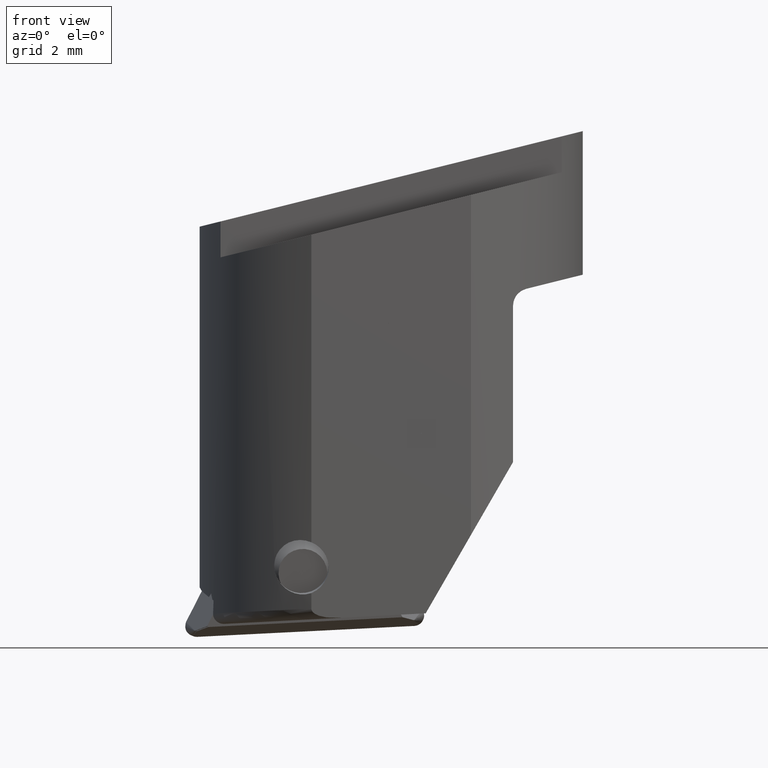
[diagram: clean part render]
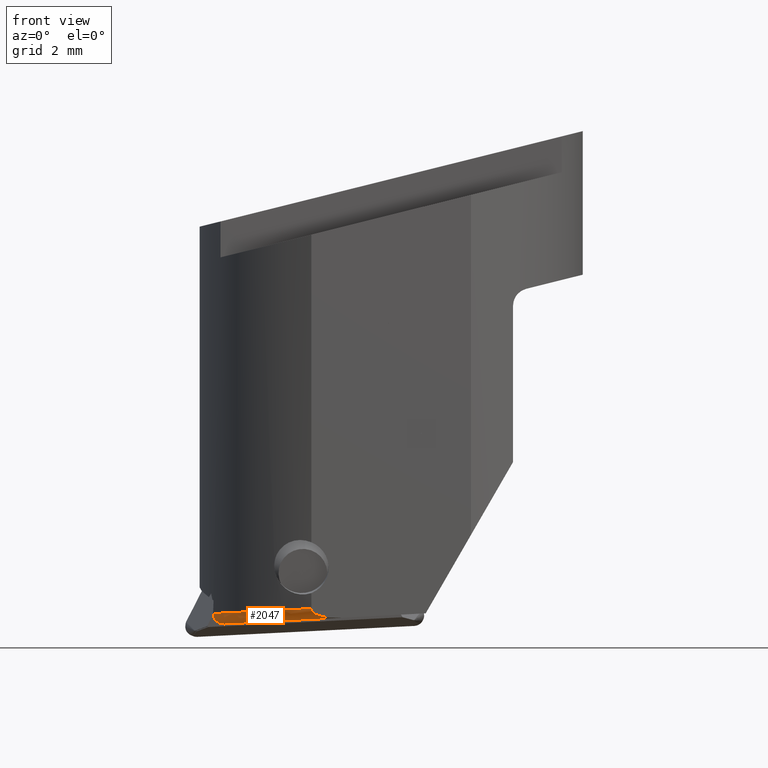
[diagram: same view with one face highlighted and labeled with its STEP entity id]
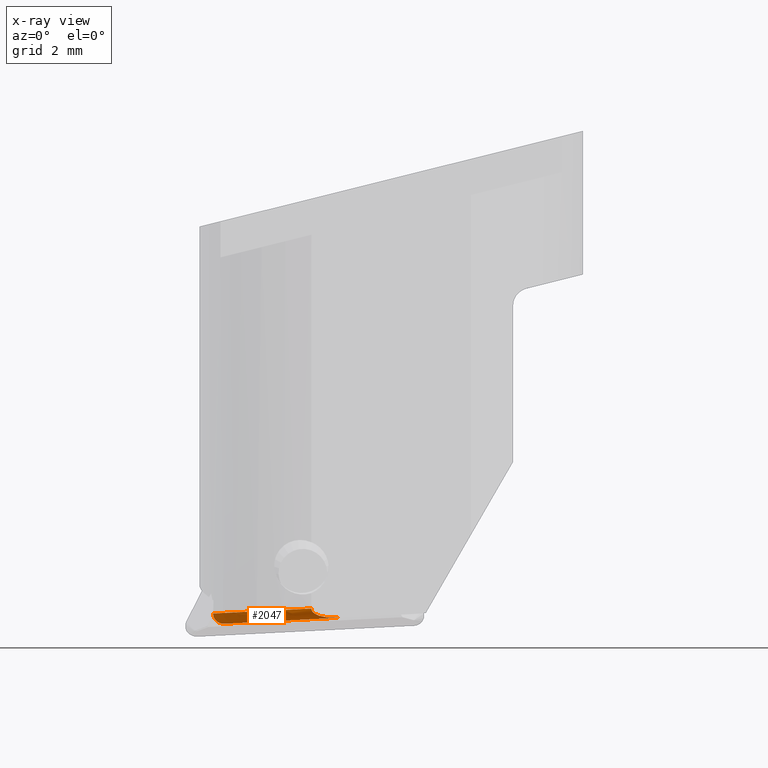
[diagram: x-ray of the same camera — body ghosted, the highlighted face saturated]
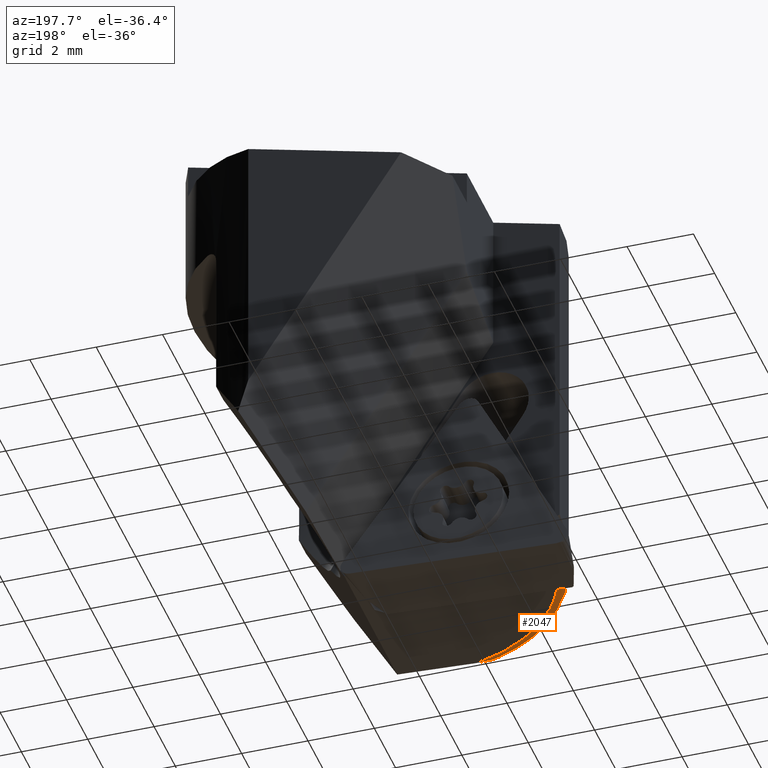
[diagram: same view with one face highlighted and labeled with its STEP entity id]
A machine part, front view. The second image highlights one B-rep face of the part: STEP entity #2047.
The next image is the same camera in x-ray: the body ghosted, the highlighted face saturated — about 0% of this face is hidden behind the body in this view.
A second angle (auxiliary view) of the same face is appended — the face is thin or edge-on in the first view.
In plain terms, the highlighted face is a freeform B-spline surface patch.
Its self-contained STEP definition (entity closure, byte-faithful):
#1001=EDGE_CURVE('NONE',#1439,#1911,#2589,.T.);
#1121=VERTEX_POINT('NONE',#2716);
#1179=VERTEX_POINT('NONE',#2779);
#1201=EDGE_CURVE('NONE',#1121,#1439,#2804,.F.);
#1347=EDGE_CURVE('NONE',#1911,#1179,#2969,.T.);
#1439=VERTEX_POINT('NONE',#3073);
#1911=VERTEX_POINT('NONE',#3592);
#2047=ADVANCED_FACE('NONE',(#3746),#3747,.F.);
#2149=EDGE_CURVE('NONE',#1179,#1121,#3861,.F.);
#2589=B_SPLINE_CURVE_WITH_KNOTS('',3,(#4405,#4406,#4407,#4408,#4409,#4410,#4411,#4412,#4413,#4414,#4415,#4416,#4417),.UNSPECIFIED.,.F.,.F.,(4,3,3,3,4),(0.0,0.439147826140791,0.693286348446881,0.835128911149063,1.0),.UNSPECIFIED.);
#2716=CARTESIAN_POINT('',(-2.29128784747793,-5.0,-13.7103005992828));
#2779=CARTESIAN_POINT('',(-5.11268489702953,-2.02742524983936,-13.8506291780769));
#2804=B_SPLINE_CURVE_WITH_KNOTS('',3,(#4725,#4726,#4727,#4728,#4729,#4730,#4731,#4732,#4733,#4734,#4735,#4736,#4737,#4738,#4739,#4740,#4741,#4742,#4743,#4744,#4745,#4746),.UNSPECIFIED.,.F.,.F.,(4,3,3,3,3,3,3,4),(0.0,0.5,0.75,0.875,0.9375,0.97221819758733,0.995920473331074,1.0),.UNSPECIFIED.);
#2969=B_SPLINE_CURVE_WITH_KNOTS('',3,(#4951,#4952,#4953,#4954,#4955,#4956,#4957,#4958,#4959,#4960),.UNSPECIFIED.,.F.,.F.,(4,3,3,4),(0.0,0.299181131693498,0.698349825767807,1.0),.UNSPECIFIED.);
#3073=CARTESIAN_POINT('',(-1.41252546348537,-5.0,-13.9710613761084));
#3592=CARTESIAN_POINT('',(-4.78428047064449,-1.9999023304953,-14.1484383631527));
#3746=FACE_OUTER_BOUND('',#6035,.T.);
#3747=B_SPLINE_SURFACE_WITH_KNOTS('',3,3,((#6036,#6037,#6038,#6039,#6040,#6041,#6042,#6043,#6044,#6045,#6046,#6047,#6048,#6049,#6050,#6051,#6052,#6053,#6054,#6055,#6056,#6057,#6058,#6059,#6060,#6061,#6062,#6063,#6064,#6065,#6066,#6067,#6068,#6069,#6070,#6071,#6072,#6073),(#6074,#6075,#6076,#6077,#6078,#6079,#6080,#6081,#6082,#6083,#6084,#6085,#6086,#6087,#6088,#6089,#6090,#6091,#6092,#6093,#6094,#6095,#6096,#6097,#6098,#6099,#6100,#6101,#6102,#6103,#6104,#6105,#6106,#6107,#6108,#6109,#6110,#6111),(#6112,#6113,#6114,#6115,#6116,#6117,#6118,#6119,#6120,#6121,#6122,#6123,#6124,#6125,#6126,#6127,#6128,#6129,#6130,#6131,#6132,#6133,#6134,#6135,#6136,#6137,#6138,#6139,#6140,#6141,#6142,#6143,#6144,#6145,#6146,#6147,#6148,#6149),(#6150,#6151,#6152,#6153,#6154,#6155,#6156,#6157,#6158,#6159,#6160,#6161,#6162,#6163,#6164,#6165,#6166,#6167,#6168,#6169,#6170,#6171,#6172,#6173,#6174,#6175,#6176,#6177,#6178,#6179,#6180,#6181,#6182,#6183,#6184,#6185,#6186,#6187),(#6188,#6189,#6190,#6191,#6192,#6193,#6194,#6195,#6196,#6197,#6198,#6199,#6200,#6201,#6202,#6203,#6204,#6205,#6206,#6207,#6208,#6209,#6210,#6211,#6212,#6213,#6214,#6215,#6216,#6217,#6218,#6219,#6220,#6221,#6222,#6223,#6224,#6225),(#6226,#6227,#6228,#6229,#6230,#6231,#6232,#6233,#6234,#6235,#6236,#6237,#6238,#6239,#6240,#6241,#6242,#6243,#6244,#6245,#6246,#6247,#6248,#6249,#6250,#6251,#6252,#6253,#6254,#6255,#6256,#6257,#6258,#6259,#6260,#6261,#6262,#6263),(#6264,#6265,#6266,#6267,#6268,#6269,#6270,#6271,#6272,#6273,#6274,#6275,#6276,#6277,#6278,#6279,#6280,#6281,#6282,#6283,#6284,#6285,#6286,#6287,#6288,#6289,#6290,#6291,#6292,#6293,#6294,#6295,#6296,#6297,#6298,#6299,#6300,#6301),(#6302,#6303,#6304,#6305,#6306,#6307,#6308,#6309,#6310,#6311,#6312,#6313,#6314,#6315,#6316,#6317,#6318,#6319,#6320,#6321,#6322,#6323,#6324,#6325,#6326,#6327,#6328,#6329,#6330,#6331,#6332,#6333,#6334,#6335,#6336,#6337,#6338,#6339),(#6340,#6341,#6342,#6343,#6344,#6345,#6346,#6347,#6348,#6349,#6350,#6351,#6352,#6353,#6354,#6355,#6356,#6357,#6358,#6359,#6360,#6361,#6362,#6363,#6364,#6365,#6366,#6367,#6368,#6369,#6370,#6371,#6372,#6373,#6374,#6375,#6376,#6377),(#6378,#6379,#6380,#6381,#6382,#6383,#6384,#6385,#6386,#6387,#6388,#6389,#6390,#6391,#6392,#6393,#6394,#6395,#6396,#6397,#6398,#6399,#6400,#6401,#6402,#6403,#6404,#6405,#6406,#6407,#6408,#6409,#6410,#6411,#6412,#6413,#6414,#6415),(#6416,#6417,#6418,#6419,#6420,#6421,#6422,#6423,#6424,#6425,#6426,#6427,#6428,#6429,#6430,#6431,#6432,#6433,#6434,#6435,#6436,#6437,#6438,#6439,#6440,#6441,#6442,#6443,#6444,#6445,#6446,#6447,#6448,#6449,#6450,#6451,#6452,#6453),(#6454,#6455,#6456,#6457,#6458,#6459,#6460,#6461,#6462,#6463,#6464,#6465,#6466,#6467,#6468,#6469,#6470,#6471,#6472,#6473,#6474,#6475,#6476,#6477,#6478,#6479,#6480,#6481,#6482,#6483,#6484,#6485,#6486,#6487,#6488,#6489,#6490,#6491),(#6492,#6493,#6494,#6495,#6496,#6497,#6498,#6499,#6500,#6501,#6502,#6503,#6504,#6505,#6506,#6507,#6508,#6509,#6510,#6511,#6512,#6513,#6514,#6515,#6516,#6517,#6518,#6519,#6520,#6521,#6522,#6523,#6524,#6525,#6526,#6527,#6528,#6529),(#6530,#6531,#6532,#6533,#6534,#6535,#6536,#6537,#6538,#6539,#6540,#6541,#6542,#6543,#6544,#6545,#6546,#6547,#6548,#6549,#6550,#6551,#6552,#6553,#6554,#6555,#6556,#6557,#6558,#6559,#6560,#6561,#6562,#6563,#6564,#6565,#6566,#6567),(#6568,#6569,#6570,#6571,#6572,#6573,#6574,#6575,#6576,#6577,#6578,#6579,#6580,#6581,#6582,#6583,#6584,#6585,#6586,#6587,#6588,#6589,#6590,#6591,#6592,#6593,#6594,#6595,#6596,#6597,#6598,#6599,#6600,#6601,#6602,#6603,#6604,#6605),(#6606,#6607,#6608,#6609,#6610,#6611,#6612,#6613,#6614,#6615,#6616,#6617,#6618,#6619,#6620,#6621,#6622,#6623,#6624,#6625,#6626,#6627,#6628,#6629,#6630,#6631,#6632,#6633,#6634,#6635,#6636,#6637,#6638,#6639,#6640,#6641,#6642,#6643),(#6644,#6645,#6646,#6647,#6648,#6649,#6650,#6651,#6652,#6653,#6654,#6655,#6656,#6657,#6658,#6659,#6660,#6661,#6662,#6663,#6664,#6665,#6666,#6667,#6668,#6669,#6670,#6671,#6672,#6673,#6674,#6675,#6676,#6677,#6678,#6679,#6680,#6681),(#6682,#6683,#6684,#6685,#6686,#6687,#6688,#6689,#6690,#6691,#6692,#6693,#6694,#6695,#6696,#6697,#6698,#6699,#6700,#6701,#6702,#6703,#6704,#6705,#6706,#6707,#6708,#6709,#6710,#6711,#6712,#6713,#6714,#6715,#6716,#6717,#6718,#6719),(#6720,#6721,#6722,#6723,#6724,#6725,#6726,#6727,#6728,#6729,#6730,#6731,#6732,#6733,#6734,#6735,#6736,#6737,#6738,#6739,#6740,#6741,#6742,#6743,#6744,#6745,#6746,#6747,#6748,#6749,#6750,#6751,#6752,#6753,#6754,#6755,#6756,#6757),(#6758,#6759,#6760,#6761,#6762,#6763,#6764,#6765,#6766,#6767,#6768,#6769,#6770,#6771,#6772,#6773,#6774,#6775,#6776,#6777,#6778,#6779,#6780,#6781,#6782,#6783,#6784,#6785,#6786,#6787,#6788,#6789,#6790,#6791,#6792,#6793,#6794,#6795)),.UNSPECIFIED.,.F.,.F.,.F.,(4,2,2,2,2,2,2,2,2,4),(4,2,2,2,2,2,2,2,2,2,2,2,2,2,2,2,2,2,4),(0.0,0.166003624124821,0.331982863471461,0.417564455574532,0.505034879591616,0.521955569468164,0.626346683361797,0.665291329239381,0.835128911149063,1.0),(0.0,0.160749711434949,0.25,0.30352247146263,0.449558541978786,0.484628368117685,0.5,0.565254180696837,0.681409331249141,0.75,0.799257017878328,0.812302119290952,0.846882354635741,0.875,0.893284044948704,0.940984826141338,0.96875,0.979436222135278,1.0),.UNSPECIFIED.);
#3861=B_SPLINE_CURVE_WITH_KNOTS('',3,(#6949,#6950,#6951,#6952,#6953,#6954,#6955,#6956,#6957,#6958),.UNSPECIFIED.,.F.,.F.,(4,3,3,4),(0.0,0.494897694643977,0.670201107981378,1.0),.UNSPECIFIED.);
#4405=CARTESIAN_POINT('',(-1.41252546348537,-5.0,-13.9710613761084));
#4406=CARTESIAN_POINT('',(-2.06861476348629,-4.81252205683506,-14.0055760845363));
#4407=CARTESIAN_POINT('',(-2.68851533250844,-4.49317756275704,-14.0381870226432));
#4408=CARTESIAN_POINT('',(-3.222831250232,-4.06810497484746,-14.0662956328837));
#4409=CARTESIAN_POINT('',(-3.53204434361836,-3.82211191070433,-14.0825623208767));
#4410=CARTESIAN_POINT('',(-3.81371474648779,-3.53980434209088,-14.09738007824));
#4411=CARTESIAN_POINT('',(-4.05870091377221,-3.2298716330504,-14.1102679982291));
#4412=CARTESIAN_POINT('',(-4.1954352643102,-3.05688861057661,-14.1174611446383));
#4413=CARTESIAN_POINT('',(-4.32188692798178,-2.87507072627599,-14.1241133526024));
#4414=CARTESIAN_POINT('',(-4.43617072561815,-2.68599187690002,-14.1301254490204));
#4415=CARTESIAN_POINT('',(-4.56900880888014,-2.4662155616571,-14.1371136256566));
#4416=CARTESIAN_POINT('',(-4.68556096083553,-2.23659253087596,-14.143245052832));
#4417=CARTESIAN_POINT('',(-4.78428047064449,-1.9999023304953,-14.1484383631527));
#4725=CARTESIAN_POINT('',(-1.41252546348537,-5.0,-13.9710613761084));
#4726=CARTESIAN_POINT('',(-1.57616893842215,-5.0,-13.9796699294064));
#4727=CARTESIAN_POINT('',(-1.74102049605385,-5.0,-13.9811700698687));
#4728=CARTESIAN_POINT('',(-1.9030346534869,-5.0,-13.9539331846187));
#4729=CARTESIAN_POINT('',(-1.98404173220342,-5.0,-13.9403147419937));
#4730=CARTESIAN_POINT('',(-2.0645643932259,-5.0,-13.9211904645761));
#4731=CARTESIAN_POINT('',(-2.13875361350192,-5.0,-13.8862693020174));
#4732=CARTESIAN_POINT('',(-2.17584822363993,-5.0,-13.8688087207381));
#4733=CARTESIAN_POINT('',(-2.21143896686653,-5.0,-13.847090953245));
#4734=CARTESIAN_POINT('',(-2.24130033084107,-5.0,-13.818935259113));
#4735=CARTESIAN_POINT('',(-2.25623101282834,-5.0,-13.804857412047));
#4736=CARTESIAN_POINT('',(-2.26896055466302,-5.0,-13.7883201156439));
#4737=CARTESIAN_POINT('',(-2.27743793362269,-5.0,-13.7695950561679));
#4738=CARTESIAN_POINT('',(-2.28214704270661,-5.0,-13.7591934511323));
#4739=CARTESIAN_POINT('',(-2.28710907826473,-5.0,-13.7490193795026));
#4740=CARTESIAN_POINT('',(-2.28850932932944,-5.0,-13.7374103275377));
#4741=CARTESIAN_POINT('',(-2.28946528727521,-5.0,-13.7294847735079));
#4742=CARTESIAN_POINT('',(-2.29263910143178,-5.0,-13.7229522548933));
#4743=CARTESIAN_POINT('',(-2.29172152690847,-5.0,-13.7145747429056));
#4744=CARTESIAN_POINT('',(-2.29156359820242,-5.0,-13.7131328440794));
#4745=CARTESIAN_POINT('',(-2.29128696124504,-5.0,-13.7116376195962));
#4746=CARTESIAN_POINT('',(-2.29128784747792,-5.0,-13.7103005992828));
#4951=CARTESIAN_POINT('',(-4.78428047064449,-1.9999023304953,-14.1484383631527));
#4952=CARTESIAN_POINT('',(-4.83404701458014,-1.99990175368324,-14.1510531192429));
#4953=CARTESIAN_POINT('',(-4.88463822843522,-2.00083740362056,-14.1429952880994));
#4954=CARTESIAN_POINT('',(-4.93073864779511,-2.00270843106741,-14.1239960182133));
#4955=CARTESIAN_POINT('',(-4.99224601655195,-2.00520476356776,-14.0986471143373));
#4956=CARTESIAN_POINT('',(-5.04567570038433,-2.00945596498367,-14.0527891065932));
#4957=CARTESIAN_POINT('',(-5.07789695811912,-2.01466123704136,-13.9948995694598));
#4958=CARTESIAN_POINT('',(-5.10224643279979,-2.01859484016816,-13.9511526794312));
#4959=CARTESIAN_POINT('',(-5.11441527886927,-2.02306239561131,-13.900655951235));
#4960=CARTESIAN_POINT('',(-5.11268489702953,-2.02742524983936,-13.8506291780769));
#6035=EDGE_LOOP('',(#8940,#8941,#8942,#8943));
#6036=CARTESIAN_POINT('',(-1.41252546348537,-5.0,-13.9710613761084));
#6037=CARTESIAN_POINT('',(-1.47221841323154,-5.0,-13.974201555939));
#6038=CARTESIAN_POINT('',(-1.53197265720934,-5.0,-13.9759793495675));
#6039=CARTESIAN_POINT('',(-1.62422702185921,-5.0,-13.9759913590968));
#6040=CARTESIAN_POINT('',(-1.6570336350517,-5.0,-13.975396135212));
#6041=CARTESIAN_POINT('',(-1.70915914928202,-5.0,-13.9732692943385));
#6042=CARTESIAN_POINT('',(-1.72861803784658,-5.0,-13.9722304911425));
#6043=CARTESIAN_POINT('',(-1.80076982778685,-5.0,-13.9675041768594));
#6044=CARTESIAN_POINT('',(-1.85279218654483,-5.0,-13.9624026937816));
#6045=CARTESIAN_POINT('',(-1.91572982445948,-5.0,-13.9517932702445));
#6046=CARTESIAN_POINT('',(-1.92784098870311,-5.0,-13.9495487208328));
#6047=CARTESIAN_POINT('',(-1.94512831766593,-5.0,-13.9460761531429));
#6048=CARTESIAN_POINT('',(-1.95037675023407,-5.0,-13.9449862055462));
#6049=CARTESIAN_POINT('',(-1.97778892993971,-5.0,-13.9391241107515));
#6050=CARTESIAN_POINT('',(-1.99956821092245,-5.0,-13.933943011082));
#6051=CARTESIAN_POINT('',(-2.05853564067942,-5.0,-13.9184483864928));
#6052=CARTESIAN_POINT('',(-2.09469383971388,-5.0,-13.9060844958685));
#6053=CARTESIAN_POINT('',(-2.14768343900177,-5.0,-13.8824037246396));
#6054=CARTESIAN_POINT('',(-2.16639321616405,-5.0,-13.8727848401516));
#6055=CARTESIAN_POINT('',(-2.19629208100481,-5.0,-13.8545408538183));
#6056=CARTESIAN_POINT('',(-2.208088511657,-5.0,-13.8464458023441));
#6057=CARTESIAN_POINT('',(-2.22192652009425,-5.0,-13.8356924244926));
#6058=CARTESIAN_POINT('',(-2.22476452833016,-5.0,-13.833411770389));
#6059=CARTESIAN_POINT('',(-2.23490361743671,-5.0,-13.8249778478582));
#6060=CARTESIAN_POINT('',(-2.24187002920598,-5.0,-13.8186462561955));
#6061=CARTESIAN_POINT('',(-2.25360718877654,-5.0,-13.8066501081447));
#6062=CARTESIAN_POINT('',(-2.25853621860398,-5.0,-13.8010755673773));
#6063=CARTESIAN_POINT('',(-2.26568072228608,-5.0,-13.7914032277148));
#6064=CARTESIAN_POINT('',(-2.26823392304364,-5.0,-13.787468191456));
#6065=CARTESIAN_POINT('',(-2.27649648795737,-5.0,-13.7729023721769));
#6066=CARTESIAN_POINT('',(-2.28123183028795,-5.0,-13.7619926472547));
#6067=CARTESIAN_POINT('',(-2.28741486822215,-5.0,-13.7450990627947));
#6068=CARTESIAN_POINT('',(-2.28830614549097,-5.0,-13.7383693091348));
#6069=CARTESIAN_POINT('',(-2.28946261320376,-5.0,-13.7293222050794));
#6070=CARTESIAN_POINT('',(-2.2899523915771,-5.0,-13.7269311840879));
#6071=CARTESIAN_POINT('',(-2.29174036633031,-5.0,-13.7202286566584));
#6072=CARTESIAN_POINT('',(-2.29128468212174,-5.0,-13.715076032006));
#6073=CARTESIAN_POINT('',(-2.29128784747792,-5.0,-13.7103005992828));
#6074=CARTESIAN_POINT('',(-1.6607514670917,-4.92906925841329,-13.9841197328575));
#6075=CARTESIAN_POINT('',(-1.7189393462124,-4.92737208612486,-13.9871773539857));
#6076=CARTESIAN_POINT('',(-1.77579155423117,-4.92565889233412,-13.988795878745));
#6077=CARTESIAN_POINT('',(-1.86273728482198,-4.92299865981528,-13.9885125905257));
#6078=CARTESIAN_POINT('',(-1.89349106179063,-4.92204977597648,-13.9878025099786));
#6079=CARTESIAN_POINT('',(-1.94232294208254,-4.92053828846044,-13.9854894633994));
#6080=CARTESIAN_POINT('',(-1.96054492921094,-4.91997310994293,-13.9843803002049));
#6081=CARTESIAN_POINT('',(-2.02819864670813,-4.91787380522928,-13.9793959225401));
#6082=CARTESIAN_POINT('',(-2.07715639037897,-4.916353443882,-13.9741141234849));
#6083=CARTESIAN_POINT('',(-2.13739845591645,-4.91450507198099,-13.9633345327518));
#6084=CARTESIAN_POINT('',(-2.14903902717263,-4.9141488734196,-13.9610595172964));
#6085=CARTESIAN_POINT('',(-2.16573662843897,-4.91363930799478,-13.9575473934354));
#6086=CARTESIAN_POINT('',(-2.17081225349635,-4.91348488635879,-13.9564416665113));
#6087=CARTESIAN_POINT('',(-2.19735054725871,-4.91267965526998,-13.9504800234547));
#6088=CARTESIAN_POINT('',(-2.21853423995778,-4.91204418379962,-13.9451606888792));
#6089=CARTESIAN_POINT('',(-2.27600548793755,-4.91033051095368,-13.9292330967165));
#6090=CARTESIAN_POINT('',(-2.31138757123656,-4.90929362387008,-13.9165365097437));
#6091=CARTESIAN_POINT('',(-2.36294504475462,-4.90776568803526,-13.8925986143837));
#6092=CARTESIAN_POINT('',(-2.38107977096905,-4.90722499159277,-13.8829439072995));
#6093=CARTESIAN_POINT('',(-2.40980782919065,-4.90634728644964,-13.8648209757561));
#6094=CARTESIAN_POINT('',(-2.42106002840582,-4.905995822993,-13.8568313314567));
#6095=CARTESIAN_POINT('',(-2.434110741637,-4.90557227804757,-13.846302449359));
#6096=CARTESIAN_POINT('',(-2.43677841641501,-4.90548475874338,-13.8440738569922));
#6097=CARTESIAN_POINT('',(-2.44627403662292,-4.90516957467427,-13.8358496317438));
#6098=CARTESIAN_POINT('',(-2.4530636269153,-4.9049193945441,-13.8294915545837));
#6099=CARTESIAN_POINT('',(-2.46474531961948,-4.90447421305747,-13.8173189319092));
#6100=CARTESIAN_POINT('',(-2.469746154666,-4.90427763747742,-13.8116184082656));
#6101=CARTESIAN_POINT('',(-2.47704080538868,-4.90398134741246,-13.8017565869113));
#6102=CARTESIAN_POINT('',(-2.47966127931549,-4.90387180109042,-13.7977516084019));
#6103=CARTESIAN_POINT('',(-2.48811898406787,-4.90351631435584,-13.783007972483));
#6104=CARTESIAN_POINT('',(-2.49290554532137,-4.90333449115176,-13.7721103890653));
#6105=CARTESIAN_POINT('',(-2.49842881199425,-4.90327360283517,-13.7559066417825));
#6106=CARTESIAN_POINT('',(-2.49930863415607,-4.90324247133684,-13.7490371223663));
#6107=CARTESIAN_POINT('',(-2.50052972435884,-4.90321467180655,-13.7397795820734));
#6108=CARTESIAN_POINT('',(-2.50104607141062,-4.90320858391881,-13.7373282723903));
#6109=CARTESIAN_POINT('',(-2.5029080463694,-4.90319887010868,-13.7305077471624));
#6110=CARTESIAN_POINT('',(-2.50249637804507,-4.90320272120913,-13.725351307175));
#6111=CARTESIAN_POINT('',(-2.502468528369,-4.90322485445043,-13.7208008323134));
#6112=CARTESIAN_POINT('',(-1.90400271455146,-4.83920621611073,-13.9969163840204));
#6113=CARTESIAN_POINT('',(-1.95923767611976,-4.8365307379473,-13.9998178089604));
#6114=CARTESIAN_POINT('',(-2.01279021168175,-4.83369451657966,-14.0012050581335));
#6115=CARTESIAN_POINT('',(-2.09452026560664,-4.82908981584472,-14.0005936498274));
#6116=CARTESIAN_POINT('',(-2.12339381142218,-4.82740214669,-13.9997813650787));
#6117=CARTESIAN_POINT('',(-2.16927861392987,-4.82469324513591,-13.9973287704706));
#6118=CARTESIAN_POINT('',(-2.18640975579873,-4.82367618856591,-13.9961698776168));
#6119=CARTESIAN_POINT('',(-2.2500961411286,-4.81991553282278,-13.990987868263));
#6120=CARTESIAN_POINT('',(-2.29635799820245,-4.81727053938536,-13.985522528133));
#6121=CARTESIAN_POINT('',(-2.35375259700633,-4.81403765312559,-13.9746499589844));
#6122=CARTESIAN_POINT('',(-2.36486489096276,-4.81341298325631,-13.9723622631343));
#6123=CARTESIAN_POINT('',(-2.38084059242902,-4.81251370030031,-13.9688353035327));
#6124=CARTESIAN_POINT('',(-2.38570089666826,-4.81224008294679,-13.9677246101512));
#6125=CARTESIAN_POINT('',(-2.41113372767152,-4.81080777206644,-13.9617320579563));
#6126=CARTESIAN_POINT('',(-2.43150565474582,-4.80965820334729,-13.9563642534708));
#6127=CARTESIAN_POINT('',(-2.48691826978859,-4.80651467432862,-13.9402141695609));
#6128=CARTESIAN_POINT('',(-2.5211954727199,-4.80456123839297,-13.9274092852132));
#6129=CARTESIAN_POINT('',(-2.57120120060921,-4.80164190228784,-13.903300073621));
#6130=CARTESIAN_POINT('',(-2.5888001493626,-4.80060350426207,-13.8935713849902));
#6131=CARTESIAN_POINT('',(-2.61666217976204,-4.79888417050428,-13.8753565381929));
#6132=CARTESIAN_POINT('',(-2.62757167181808,-4.79818385605678,-13.8673352385813));
#6133=CARTESIAN_POINT('',(-2.64021394430267,-4.79731382417983,-13.8567767331373));
#6134=CARTESIAN_POINT('',(-2.64279742670929,-4.79713252618405,-13.8545425775115));
#6135=CARTESIAN_POINT('',(-2.65198997892468,-4.7964734304676,-13.8463011351079));
#6136=CARTESIAN_POINT('',(-2.6586531168913,-4.79596672513729,-13.8399168604941));
#6137=CARTESIAN_POINT('',(-2.67018689117547,-4.79508995595338,-13.8276835454186));
#6138=CARTESIAN_POINT('',(-2.67515200861356,-4.79471310023646,-13.8219504904189));
#6139=CARTESIAN_POINT('',(-2.68243406660022,-4.79415405627895,-13.8120521636694));
#6140=CARTESIAN_POINT('',(-2.68506237659895,-4.79394967147983,-13.8080377281348));
#6141=CARTESIAN_POINT('',(-2.69356504678143,-4.79328909639774,-13.7932768069572));
#6142=CARTESIAN_POINT('',(-2.69835248908614,-4.79295846852428,-13.7823631961794));
#6143=CARTESIAN_POINT('',(-2.70357427412644,-4.79279041267234,-13.766125043681));
#6144=CARTESIAN_POINT('',(-2.70453767529213,-4.79276795879617,-13.7592785917826));
#6145=CARTESIAN_POINT('',(-2.70583165313313,-4.79277729327793,-13.7500220270137));
#6146=CARTESIAN_POINT('',(-2.70634528842033,-4.79278486645029,-13.7475575615873));
#6147=CARTESIAN_POINT('',(-2.70813734969274,-4.79282375452301,-13.7406704050448));
#6148=CARTESIAN_POINT('',(-2.70782713974707,-4.79287140941719,-13.7355542911398));
#6149=CARTESIAN_POINT('',(-2.70776787475236,-4.79291713288089,-13.7310146225398));
#6150=CARTESIAN_POINT('',(-2.37434161247653,-4.62470613673047,-14.0216593725354));
#6151=CARTESIAN_POINT('',(-2.4226626023619,-4.62098901526244,-14.0241975834795));
#6152=CARTESIAN_POINT('',(-2.46957554572401,-4.61677431269441,-14.0250703913867));
#6153=CARTESIAN_POINT('',(-2.54143618272097,-4.60950881247141,-14.0237734754479));
#6154=CARTESIAN_POINT('',(-2.56687258349663,-4.60675432685978,-14.0227624735385));
#6155=CARTESIAN_POINT('',(-2.60742833309709,-4.60228996039023,-14.0200572034937));
#6156=CARTESIAN_POINT('',(-2.62260060479306,-4.60060519871909,-14.0188107309938));
#6157=CARTESIAN_POINT('',(-2.67915128472466,-4.59440629687712,-14.0132658563323));
#6158=CARTESIAN_POINT('',(-2.72054794042738,-4.59019826556549,-14.0074234409153));
#6159=CARTESIAN_POINT('',(-2.77227899503364,-4.58498580803856,-13.9964070112748));
#6160=CARTESIAN_POINT('',(-2.78231194407116,-4.5839736270615,-13.9941039984128));
#6161=CARTESIAN_POINT('',(-2.79676130011867,-4.58250217373228,-13.990561154189));
#6162=CARTESIAN_POINT('',(-2.80116323823039,-4.58205262832641,-13.989447474357));
#6163=CARTESIAN_POINT('',(-2.82422895850394,-4.57968998949694,-13.9834400396859));
#6164=CARTESIAN_POINT('',(-2.84281447429371,-4.57776121426732,-13.9780447321687));
#6165=CARTESIAN_POINT('',(-2.8936596039272,-4.5724099433848,-13.9616267654937));
#6166=CARTESIAN_POINT('',(-2.92543313534528,-4.56899481719071,-13.9487924261056));
#6167=CARTESIAN_POINT('',(-2.97217471507317,-4.56380553855172,-13.9244352134307));
#6168=CARTESIAN_POINT('',(-2.98870648609821,-4.56194804161526,-13.914541938367));
#6169=CARTESIAN_POINT('',(-3.01503443999908,-4.55879975121446,-13.8959989868639));
#6170=CARTESIAN_POINT('',(-3.0254004266322,-4.55749266490981,-13.887816737899));
#6171=CARTESIAN_POINT('',(-3.0375052860707,-4.55581600694458,-13.8770123337289));
#6172=CARTESIAN_POINT('',(-3.03998440364654,-4.55546364177708,-13.8747245097755));
#6173=CARTESIAN_POINT('',(-3.0488255865476,-4.55417062717654,-13.8662802869114));
#6174=CARTESIAN_POINT('',(-3.05523148385232,-4.55319110044513,-13.8598492270856));
#6175=CARTESIAN_POINT('',(-3.06629089785194,-4.55152761227653,-13.847596241306));
#6176=CARTESIAN_POINT('',(-3.07104293952613,-4.55082648374693,-13.8418767758617));
#6177=CARTESIAN_POINT('',(-3.07807565095646,-4.54979929973328,-13.832035002919));
#6178=CARTESIAN_POINT('',(-3.0806343920191,-4.54942705501175,-13.8280530070143));
#6179=CARTESIAN_POINT('',(-3.08897889103461,-4.54822736513562,-13.8133996731123));
#6180=CARTESIAN_POINT('',(-3.09365777822518,-4.54763715153624,-13.8024511744233));
#6181=CARTESIAN_POINT('',(-3.09857201001816,-4.54723545417693,-13.7856308098104));
#6182=CARTESIAN_POINT('',(-3.09966121512349,-4.54713795957883,-13.7789319174399));
#6183=CARTESIAN_POINT('',(-3.10094819015351,-4.5470861488252,-13.7698063777355));
#6184=CARTESIAN_POINT('',(-3.10139113346662,-4.54708306148059,-13.76734332614));
#6185=CARTESIAN_POINT('',(-3.1028286155496,-4.54712303833923,-13.7603446306776));
#6186=CARTESIAN_POINT('',(-3.1027045419994,-4.54721458785373,-13.7553303901029));
#6187=CARTESIAN_POINT('',(-3.10259384472995,-4.54730217336255,-13.7506574825688));
#6188=CARTESIAN_POINT('',(-2.60131796620436,-4.50010651667238,-14.0335998549309));
#6189=CARTESIAN_POINT('',(-2.64567805011117,-4.49632592339336,-14.0359310555359));
#6190=CARTESIAN_POINT('',(-2.68926341012211,-4.49185252464067,-14.0365208229696));
#6191=CARTESIAN_POINT('',(-2.75649585573315,-4.48386403730927,-14.0348667682035));
#6192=CARTESIAN_POINT('',(-2.78038572501199,-4.48077882524842,-14.0337593519571));
#6193=CARTESIAN_POINT('',(-2.8185759081936,-4.47575214757169,-14.0309411078856));
#6194=CARTESIAN_POINT('',(-2.83288626128085,-4.47384997323225,-14.0296568421948));
#6195=CARTESIAN_POINT('',(-2.88629005260771,-4.46686858894869,-14.0239469351489));
#6196=CARTESIAN_POINT('',(-2.92553055385658,-4.46221870673547,-14.0179111132215));
#6197=CARTESIAN_POINT('',(-2.97445114922418,-4.45640965583077,-14.0068438489398));
#6198=CARTESIAN_POINT('',(-2.98393362087491,-4.45527826484196,-14.0045382035819));
#6199=CARTESIAN_POINT('',(-2.99757854344472,-4.45362432823338,-14.0009943084516));
#6200=CARTESIAN_POINT('',(-3.00173745027801,-4.45311806390896,-13.9998826146921));
#6201=CARTESIAN_POINT('',(-3.02354164506595,-4.45045235521514,-13.9938912706332));
#6202=CARTESIAN_POINT('',(-3.04115278223068,-4.44825898583334,-13.9885170928441));
#6203=CARTESIAN_POINT('',(-3.08949005464463,-4.44213184196818,-13.9720543705187));
#6204=CARTESIAN_POINT('',(-3.11986572165888,-4.43817352495219,-13.9592994749442));
#6205=CARTESIAN_POINT('',(-3.16489614600072,-4.43210840539516,-13.9348664345014));
#6206=CARTESIAN_POINT('',(-3.18089693053021,-4.4299304256937,-13.9248828519947));
#6207=CARTESIAN_POINT('',(-3.20655730766403,-4.42619590683808,-13.9061040888604));
#6208=CARTESIAN_POINT('',(-3.21672262124647,-4.42463121776721,-13.8977926641666));
#6209=CARTESIAN_POINT('',(-3.22869853309054,-4.42259455718041,-13.8867720588394));
#6210=CARTESIAN_POINT('',(-3.23115747597343,-4.42216491738126,-13.8844361411698));
#6211=CARTESIAN_POINT('',(-3.23995032013578,-4.42058188763323,-13.8758063797296));
#6212=CARTESIAN_POINT('',(-3.24622519108095,-4.41938579938267,-13.869354907483));
#6213=CARTESIAN_POINT('',(-3.25695755656372,-4.41736648079798,-13.8571433955985));
#6214=CARTESIAN_POINT('',(-3.26153190407946,-4.41652096643238,-13.8514703028799));
#6215=CARTESIAN_POINT('',(-3.26832729913381,-4.41528774057401,-13.8417220096436));
#6216=CARTESIAN_POINT('',(-3.2708084113619,-4.41484221430675,-13.8377820773028));
#6217=CARTESIAN_POINT('',(-3.27894901955106,-4.41340762813189,-13.8232541786614));
#6218=CARTESIAN_POINT('',(-3.28351803265101,-4.41270613427788,-13.8122871550384));
#6219=CARTESIAN_POINT('',(-3.28842614944206,-4.41217796578487,-13.7949190589426));
#6220=CARTESIAN_POINT('',(-3.28955323127479,-4.41200347178863,-13.788343375381));
#6221=CARTESIAN_POINT('',(-3.29075395206668,-4.41186323614971,-13.7793460060952));
#6222=CARTESIAN_POINT('',(-3.29112711184107,-4.41183862460765,-13.7768969919405));
#6223=CARTESIAN_POINT('',(-3.29227523012186,-4.41183838621197,-13.7698520079876));
#6224=CARTESIAN_POINT('',(-3.29223344857187,-4.41193371111112,-13.7648986158337));
#6225=CARTESIAN_POINT('',(-3.29210273267265,-4.4120395692234,-13.7600816858502));
#6226=CARTESIAN_POINT('',(-2.92985715952368,-4.2868488035236,-14.0508832256543));
#6227=CARTESIAN_POINT('',(-2.96887928688914,-4.28326908170775,-14.0529351968119));
#6228=CARTESIAN_POINT('',(-3.007830946364,-4.27877442311579,-14.0531558557784));
#6229=CARTESIAN_POINT('',(-3.06848587103384,-4.27036358260625,-14.0510270595001));
#6230=CARTESIAN_POINT('',(-3.09014892138618,-4.26703925969807,-14.0497878675926));
#6231=CARTESIAN_POINT('',(-3.12490910171807,-4.26158696590789,-14.0468071166071));
#6232=CARTESIAN_POINT('',(-3.13796397388001,-4.25951660635298,-14.0454669729551));
#6233=CARTESIAN_POINT('',(-3.18677434320291,-4.25193902891431,-14.0395160448556));
#6234=CARTESIAN_POINT('',(-3.22284489790982,-4.24700645060127,-14.0332084236997));
#6235=CARTESIAN_POINT('',(-3.26772319684813,-4.24076381124699,-14.0220243729043));
#6236=CARTESIAN_POINT('',(-3.27641785886001,-4.23954284575689,-14.0197044107193));
#6237=CARTESIAN_POINT('',(-3.2889185712024,-4.2377447258557,-14.0161423587876));
#6238=CARTESIAN_POINT('',(-3.29273058573014,-4.23719237078255,-14.0150273872238));
#6239=CARTESIAN_POINT('',(-3.31272772378316,-4.23427418418785,-14.0090232456915));
#6240=CARTESIAN_POINT('',(-3.32892061417378,-4.23183942287323,-14.003639775919));
#6241=CARTESIAN_POINT('',(-3.37354236619591,-4.2249653525984,-13.9870184238047));
#6242=CARTESIAN_POINT('',(-3.40177197802278,-4.22044174094877,-13.9742892517889));
#6243=CARTESIAN_POINT('',(-3.44403572626626,-4.21344979122754,-13.9497016616303));
#6244=CARTESIAN_POINT('',(-3.45914127047325,-4.2109306244937,-13.9395958706242));
#6245=CARTESIAN_POINT('',(-3.48358259806941,-4.20656875315978,-13.9205420352505));
#6246=CARTESIAN_POINT('',(-3.49334019855991,-4.20472716646337,-13.9120882023904));
#6247=CARTESIAN_POINT('',(-3.50496413479097,-4.20230127027383,-13.9008392333955));
#6248=CARTESIAN_POINT('',(-3.50735833521661,-4.20178796707496,-13.89845295327));
#6249=CARTESIAN_POINT('',(-3.51594817419949,-4.19989050431461,-13.8896306731848));
#6250=CARTESIAN_POINT('',(-3.52195718531193,-4.19845935490847,-13.8831399843791));
#6251=CARTESIAN_POINT('',(-3.53210485197897,-4.19605596128062,-13.8709267067319));
#6252=CARTESIAN_POINT('',(-3.5363815253679,-4.19505573650409,-13.8652770636192));
#6253=CARTESIAN_POINT('',(-3.54276313631112,-4.19360281128266,-13.8555942417768));
#6254=CARTESIAN_POINT('',(-3.54510296290327,-4.19307940616807,-13.8516880590413));
#6255=CARTESIAN_POINT('',(-3.55283793286133,-4.19139510984829,-13.837268342917));
#6256=CARTESIAN_POINT('',(-3.55717927079579,-4.19057562150905,-13.826280535206));
#6257=CARTESIAN_POINT('',(-3.56198285887061,-4.18989660553652,-13.8084015792577));
#6258=CARTESIAN_POINT('',(-3.56315767484924,-4.1896550364772,-13.8019508449222));
#6259=CARTESIAN_POINT('',(-3.56427251928299,-4.18944380537445,-13.7930688065178));
#6260=CARTESIAN_POINT('',(-3.56456737507331,-4.18940316423571,-13.7906246660291));
#6261=CARTESIAN_POINT('',(-3.56538347531908,-4.18937949571408,-13.783498516988));
#6262=CARTESIAN_POINT('',(-3.5654620201313,-4.18949088852056,-13.7786197611451));
#6263=CARTESIAN_POINT('',(-3.56531883356125,-4.18961418060167,-13.7736743529962));
#6264=CARTESIAN_POINT('',(-3.03880823207135,-4.21004539095842,-14.0566147846869));
#6265=CARTESIAN_POINT('',(-3.07613106923678,-4.20658611635487,-14.0585778163972));
#6266=CARTESIAN_POINT('',(-3.11358933730817,-4.20214522782983,-14.0586840895863));
#6267=CARTESIAN_POINT('',(-3.17210641061998,-4.19370042020068,-14.0564068783717));
#6268=CARTESIAN_POINT('',(-3.19304186783844,-4.19033731329886,-14.0551259515589));
#6269=CARTESIAN_POINT('',(-3.22667730318532,-4.18480965093358,-14.0520923586515));
#6270=CARTESIAN_POINT('',(-3.23931952917586,-4.18270835979269,-14.0507337913516));
#6271=CARTESIAN_POINT('',(-3.28661761838938,-4.17502431980759,-14.0447036616241));
#6272=CARTESIAN_POINT('',(-3.3216389010345,-4.17005910670257,-14.0383080490983));
#6273=CARTESIAN_POINT('',(-3.36518519894537,-4.16374966792162,-14.0270776078064));
#6274=CARTESIAN_POINT('',(-3.37362053409386,-4.16251401702586,-14.024750996034));
#6275=CARTESIAN_POINT('',(-3.38574513982992,-4.16069006890184,-14.0211798615546));
#6276=CARTESIAN_POINT('',(-3.38944290331006,-4.16012902772248,-14.0200626707566));
#6277=CARTESIAN_POINT('',(-3.4088436822367,-4.15716123095442,-14.0140476415126));
#6278=CARTESIAN_POINT('',(-3.42456434843421,-4.15467234258533,-14.0086537355505));
#6279=CARTESIAN_POINT('',(-3.46793705114733,-4.14761939381874,-13.9919623848264));
#6280=CARTESIAN_POINT('',(-3.49543175289215,-4.14294869628068,-13.9792252552564));
#6281=CARTESIAN_POINT('',(-3.53672387826929,-4.13571167640288,-13.9545779977192));
#6282=CARTESIAN_POINT('',(-3.55150898754809,-4.13310178062388,-13.9444331562242));
#6283=CARTESIAN_POINT('',(-3.5754992322854,-4.12857227756215,-13.9253001252862));
#6284=CARTESIAN_POINT('',(-3.58509995932442,-4.12665640035681,-13.9168071905897));
#6285=CARTESIAN_POINT('',(-3.59657669282038,-4.12412551655114,-13.905497945393));
#6286=CARTESIAN_POINT('',(-3.59894287458442,-4.1235896191953,-13.9030984829557));
#6287=CARTESIAN_POINT('',(-3.60744089214147,-4.12160713312546,-13.8942262644364));
#6288=CARTESIAN_POINT('',(-3.61334779393385,-4.12011253416725,-13.8877207513199));
#6289=CARTESIAN_POINT('',(-3.62328129455375,-4.11760617496555,-13.8754954561778));
#6290=CARTESIAN_POINT('',(-3.62745192990165,-4.1165648296379,-13.8698455298595));
#6291=CARTESIAN_POINT('',(-3.63368362343136,-4.11505384311588,-13.8601715375951));
#6292=CARTESIAN_POINT('',(-3.63597137557569,-4.11450994005648,-13.8562715435117));
#6293=CARTESIAN_POINT('',(-3.64355185432081,-4.1127599241742,-13.841874158892));
#6294=CARTESIAN_POINT('',(-3.64780527229328,-4.11190951722314,-13.8308805016409));
#6295=CARTESIAN_POINT('',(-3.65255658939906,-4.11118634546943,-13.8128837580072));
#6296=CARTESIAN_POINT('',(-3.65373771514622,-4.11093893326005,-13.8064636968636));
#6297=CARTESIAN_POINT('',(-3.65481913718514,-4.11072673476605,-13.7976055882302));
#6298=CARTESIAN_POINT('',(-3.65508874307113,-4.11068699449132,-13.7951598138538));
#6299=CARTESIAN_POINT('',(-3.6558016367993,-4.11067092079151,-13.78800303875));
#6300=CARTESIAN_POINT('',(-3.65591582968043,-4.11079413156357,-13.7831460428992));
#6301=CARTESIAN_POINT('',(-3.65577153518508,-4.11092155492581,-13.7781726791456));
#6302=CARTESIAN_POINT('',(-3.25252138300072,-4.04659480526691,-14.0678575335129));
#6303=CARTESIAN_POINT('',(-3.28690552110694,-4.04341202309379,-14.069666325494));
#6304=CARTESIAN_POINT('',(-3.32161983743357,-4.03914788302429,-14.0695809053215));
#6305=CARTESIAN_POINT('',(-3.37607500465904,-4.03080312534929,-14.0670438840131));
#6306=CARTESIAN_POINT('',(-3.39559965677305,-4.02743619823082,-14.0656856821539));
#6307=CARTESIAN_POINT('',(-3.42703279696612,-4.02188202303874,-14.0625465639589));
#6308=CARTESIAN_POINT('',(-3.43886196969037,-4.01976667052128,-14.0611499615625));
#6309=CARTESIAN_POINT('',(-3.4831736135501,-4.0120423663812,-14.0549604777143));
#6310=CARTESIAN_POINT('',(-3.51610654883058,-4.00711217914082,-14.048400033666));
#6311=CARTESIAN_POINT('',(-3.55709473159421,-4.00080622488343,-14.0370486931813));
#6312=CARTESIAN_POINT('',(-3.56503623401671,-3.99956862401009,-14.034701702905));
#6313=CARTESIAN_POINT('',(-3.57645209852152,-3.99773490988468,-14.0311013881909));
#6314=CARTESIAN_POINT('',(-3.57993444473846,-3.99716933618344,-14.029975403011));
#6315=CARTESIAN_POINT('',(-3.59820970958037,-3.99417005739048,-14.0239122230584));
#6316=CARTESIAN_POINT('',(-3.61303515835585,-3.99162911979407,-14.0184662571889));
#6317=CARTESIAN_POINT('',(-3.65401194357575,-3.98437799457606,-14.0015633598786));
#6318=CARTESIAN_POINT('',(-3.68006695581196,-3.97951919431767,-13.9887364892205));
#6319=CARTESIAN_POINT('',(-3.71935174017313,-3.97196152343007,-13.9639385713154));
#6320=CARTESIAN_POINT('',(-3.7334492207788,-3.96923180620772,-13.9537264453228));
#6321=CARTESIAN_POINT('',(-3.7564000463679,-3.96448102600331,-13.9344993290882));
#6322=CARTESIAN_POINT('',(-3.76561159347041,-3.96246701687877,-13.9259700755004));
#6323=CARTESIAN_POINT('',(-3.77666931659305,-3.95979760140076,-13.9146184381329));
#6324=CARTESIAN_POINT('',(-3.77895177171638,-3.95923189830304,-13.9122103522018));
#6325=CARTESIAN_POINT('',(-3.78715907671781,-3.95713728916945,-13.9033081585726));
#6326=CARTESIAN_POINT('',(-3.79282557386513,-3.95555944554161,-13.8967687236322));
#6327=CARTESIAN_POINT('',(-3.80230722249273,-3.95291917915338,-13.8844736926722));
#6328=CARTESIAN_POINT('',(-3.80627026043044,-3.95182494067952,-13.8787890347031));
#6329=CARTESIAN_POINT('',(-3.81220485281316,-3.9502397255464,-13.8690771732497));
#6330=CARTESIAN_POINT('',(-3.8143880288444,-3.94966972978412,-13.8651677175278));
#6331=CARTESIAN_POINT('',(-3.82164395191075,-3.94783592169843,-13.8507559926328));
#6332=CARTESIAN_POINT('',(-3.82570510450643,-3.94694599423476,-13.839757259014));
#6333=CARTESIAN_POINT('',(-3.8302585879609,-3.94615816572038,-13.8217651269715));
#6334=CARTESIAN_POINT('',(-3.83140564715878,-3.94594412065501,-13.8153534161565));
#6335=CARTESIAN_POINT('',(-3.83239531463205,-3.94579097067711,-13.806473990435));
#6336=CARTESIAN_POINT('',(-3.83261795410202,-3.94576960858837,-13.8040095877971));
#6337=CARTESIAN_POINT('',(-3.83315775492162,-3.94580857292822,-13.7967750028126));
#6338=CARTESIAN_POINT('',(-3.83331801478173,-3.94597042576017,-13.7919460997022));
#6339=CARTESIAN_POINT('',(-3.83317950785653,-3.94610142351731,-13.7869859422254));
#6340=CARTESIAN_POINT('',(-3.35738200565801,-3.95969682053768,-14.0733739073982));
#6341=CARTESIAN_POINT('',(-3.39053771247344,-3.95667081057902,-14.0751179641498));
#6342=CARTESIAN_POINT('',(-3.42398074053796,-3.95253897498138,-14.074954693234));
#6343=CARTESIAN_POINT('',(-3.47646187294011,-3.9443482239159,-14.072304220138));
#6344=CARTESIAN_POINT('',(-3.49528196537576,-3.94102452584065,-14.0709094364204));
#6345=CARTESIAN_POINT('',(-3.52560328071371,-3.93553245031869,-14.0677157686076));
#6346=CARTESIAN_POINT('',(-3.5370191670415,-3.93343893387254,-14.0662988319257));
#6347=CARTESIAN_POINT('',(-3.57981124614535,-3.92579839915205,-14.0600267303332));
#6348=CARTESIAN_POINT('',(-3.61167705462036,-3.92094650255593,-14.0533882136233));
#6349=CARTESIAN_POINT('',(-3.65142988130043,-3.91471745847364,-14.0419611201942));
#6350=CARTESIAN_POINT('',(-3.65913627572814,-3.91349357780091,-14.0396001805427));
#6351=CARTESIAN_POINT('',(-3.67022064826289,-3.91167686302281,-14.0359795294557));
#6352=CARTESIAN_POINT('',(-3.67360217253258,-3.91111573089365,-14.0348468741424));
#6353=CARTESIAN_POINT('',(-3.69135005440411,-3.90813610321307,-14.0287458550871));
#6354=CARTESIAN_POINT('',(-3.7057538222886,-3.90559851950778,-14.0232575839861));
#6355=CARTESIAN_POINT('',(-3.74558658673263,-3.89833174075326,-14.0062116002683));
#6356=CARTESIAN_POINT('',(-3.77093782711044,-3.89343436984453,-13.9933013268546));
#6357=CARTESIAN_POINT('',(-3.80918593064716,-3.88580502463629,-13.96841176235));
#6358=CARTESIAN_POINT('',(-3.82291533437328,-3.88304763529268,-13.958171663042));
#6359=CARTESIAN_POINT('',(-3.84527500540305,-3.87824582608127,-13.9389311184779));
#6360=CARTESIAN_POINT('',(-3.85425265503944,-3.87620913071598,-13.9304055923403));
#6361=CARTESIAN_POINT('',(-3.86503589098322,-3.87350780161542,-13.9190735938705));
#6362=CARTESIAN_POINT('',(-3.86726204053235,-3.87293523771234,-13.9166704647859));
#6363=CARTESIAN_POINT('',(-3.87526813604487,-3.87081484864422,-13.9077898015759));
#6364=CARTESIAN_POINT('',(-3.88079557803883,-3.86921820125024,-13.9012311838122));
#6365=CARTESIAN_POINT('',(-3.89003909698383,-3.86654862497141,-13.888877436463));
#6366=CARTESIAN_POINT('',(-3.89390070972229,-3.86544327712443,-13.8831575788034));
#6367=CARTESIAN_POINT('',(-3.89968822448,-3.86384284002005,-13.8733977931842));
#6368=CARTESIAN_POINT('',(-3.9018189039669,-3.86326758540291,-13.8694722039233));
#6369=CARTESIAN_POINT('',(-3.90890445792742,-3.86141677823629,-13.8550225000353));
#6370=CARTESIAN_POINT('',(-3.91286092463371,-3.8605187507045,-13.8440246919934));
#6371=CARTESIAN_POINT('',(-3.9172668118691,-3.85971096479351,-13.826160317659));
#6372=CARTESIAN_POINT('',(-3.91839208445531,-3.85952009206429,-13.8197276007881));
#6373=CARTESIAN_POINT('',(-3.91935166668647,-3.85940331969536,-13.8108050584778));
#6374=CARTESIAN_POINT('',(-3.91956085008662,-3.85939270770706,-13.8083243647125));
#6375=CARTESIAN_POINT('',(-3.92005286588335,-3.85946148656817,-13.8010449625408));
#6376=CARTESIAN_POINT('',(-3.9202337344783,-3.85964114453635,-13.7962234131991));
#6377=CARTESIAN_POINT('',(-3.92010230022806,-3.85977147992449,-13.7913059566814));
#6378=CARTESIAN_POINT('',(-3.47869514055479,-3.85104584635472,-14.079755794076));
#6379=CARTESIAN_POINT('',(-3.51085618050764,-3.84818160143334,-14.0814467957059));
#6380=CARTESIAN_POINT('',(-3.54292921320452,-3.84423575530617,-14.0812209115637));
#6381=CARTESIAN_POINT('',(-3.59306375051917,-3.83634305182487,-14.0784585683177));
#6382=CARTESIAN_POINT('',(-3.61100329986013,-3.83312750023109,-14.0770209740948));
#6383=CARTESIAN_POINT('',(-3.63991228481048,-3.82780612986861,-14.0737542927031));
#6384=CARTESIAN_POINT('',(-3.65079787890087,-3.82577609107067,-14.0723089663768));
#6385=CARTESIAN_POINT('',(-3.69164217606757,-3.818367752927,-14.065927249749));
#6386=CARTESIAN_POINT('',(-3.72214133476901,-3.81367683185028,-14.0592010011542));
#6387=CARTESIAN_POINT('',(-3.76049202200992,-3.8076190611789,-14.0476560086267));
#6388=CARTESIAN_POINT('',(-3.76794051386724,-3.80642702755836,-14.0452718155639));
#6389=CARTESIAN_POINT('',(-3.77867705039294,-3.80465394470821,-14.0416171137388));
#6390=CARTESIAN_POINT('',(-3.78195295178901,-3.80410546752044,-14.0404725381191));
#6391=CARTESIAN_POINT('',(-3.79914857338715,-3.80118907254964,-14.0343021304619));
#6392=CARTESIAN_POINT('',(-3.81311135916676,-3.79869186472589,-14.0287341122857));
#6393=CARTESIAN_POINT('',(-3.85172522497037,-3.79151627246683,-14.0114507704311));
#6394=CARTESIAN_POINT('',(-3.87630404804114,-3.78665328439527,-13.9983706720993));
#6395=CARTESIAN_POINT('',(-3.91330543110062,-3.77906938559393,-13.9733436877793));
#6396=CARTESIAN_POINT('',(-3.9265679777384,-3.77632684343736,-13.9630816589354));
#6397=CARTESIAN_POINT('',(-3.94811179077484,-3.77155349984752,-13.9438892455516));
#6398=CARTESIAN_POINT('',(-3.95674431150289,-3.76952958964596,-13.9354095931557));
#6399=CARTESIAN_POINT('',(-3.96708392252814,-3.76684730892217,-13.9241779630795));
#6400=CARTESIAN_POINT('',(-3.96921679054688,-3.76627889300523,-13.9217981977692));
#6401=CARTESIAN_POINT('',(-3.97688079520493,-3.76417432407368,-13.9130119280512));
#6402=CARTESIAN_POINT('',(-3.98221563478673,-3.76259064189649,-13.9064274403604));
#6403=CARTESIAN_POINT('',(-3.9911730684162,-3.75994417454258,-13.893961663843));
#6404=CARTESIAN_POINT('',(-3.99492940108517,-3.75884904487449,-13.8881678177706));
#6405=CARTESIAN_POINT('',(-4.00056255766687,-3.75726372415842,-13.8782986318792));
#6406=CARTESIAN_POINT('',(-4.0026373804631,-3.75669397850614,-13.8743331889907));
#6407=CARTESIAN_POINT('',(-4.00952809061775,-3.75486053172417,-13.8597826047188));
#6408=CARTESIAN_POINT('',(-4.01335640757002,-3.75397029999489,-13.8487928652335));
#6409=CARTESIAN_POINT('',(-4.01749257011052,-3.75316027447702,-13.8313122795054));
#6410=CARTESIAN_POINT('',(-4.01860395535935,-3.7529725569373,-13.8248107492292));
#6411=CARTESIAN_POINT('',(-4.01958768733263,-3.75285888799155,-13.8157812175222));
#6412=CARTESIAN_POINT('',(-4.01980822260546,-3.75284900306137,-13.8132695392613));
#6413=CARTESIAN_POINT('',(-4.02033799775111,-3.75291869618543,-13.8059294784372));
#6414=CARTESIAN_POINT('',(-4.02054949130999,-3.75309742117464,-13.8011059386221));
#6415=CARTESIAN_POINT('',(-4.02043251209544,-3.75322330096081,-13.796306308957));
#6416=CARTESIAN_POINT('',(-3.49823020936119,-3.83328216000262,-14.0807834700612));
#6417=CARTESIAN_POINT('',(-3.5302285920499,-3.83044142992892,-14.0824657961587));
#6418=CARTESIAN_POINT('',(-3.56208137919398,-3.82652586395542,-14.0822301759145));
#6419=CARTESIAN_POINT('',(-3.61184050458275,-3.8186847874747,-14.0794493731263));
#6420=CARTESIAN_POINT('',(-3.62963949018142,-3.81548859391174,-14.0780048408299));
#6421=CARTESIAN_POINT('',(-3.65832305050135,-3.81019811038679,-14.0747261294516));
#6422=CARTESIAN_POINT('',(-3.66912400953561,-3.80817962663226,-14.0732760908709));
#6423=CARTESIAN_POINT('',(-3.70965718737616,-3.80081338282754,-14.0668764041764));
#6424=CARTESIAN_POINT('',(-3.73993747711213,-3.79615081100243,-14.0601363219329));
#6425=CARTESIAN_POINT('',(-3.77806150946763,-3.79012290085645,-14.0485730087204));
#6426=CARTESIAN_POINT('',(-3.785468191566,-3.78893641069134,-14.0461852319206));
#6427=CARTESIAN_POINT('',(-3.79614812527544,-3.78717093548333,-14.0425253302672));
#6428=CARTESIAN_POINT('',(-3.79940683724245,-3.78662467486521,-14.0413789432422));
#6429=CARTESIAN_POINT('',(-3.81651257816808,-3.78371941286077,-14.0351980189286));
#6430=CARTESIAN_POINT('',(-3.83040358299908,-3.78122952215858,-14.0296179988588));
#6431=CARTESIAN_POINT('',(-3.86881916811044,-3.77407122072465,-14.0122983331016));
#6432=CARTESIAN_POINT('',(-3.89327237888268,-3.76921580366544,-13.9991918510959));
#6433=CARTESIAN_POINT('',(-3.93007164825142,-3.76164331225417,-13.9741433986027));
#6434=CARTESIAN_POINT('',(-3.94325869408577,-3.75890485075776,-13.9638775870482));
#6435=CARTESIAN_POINT('',(-3.96467083152202,-3.75413969022308,-13.9446914601181));
#6436=CARTESIAN_POINT('',(-3.97324772900434,-3.75211956530601,-13.9362182480485));
#6437=CARTESIAN_POINT('',(-3.98351592497643,-3.74944298895923,-13.9250008064005));
#6438=CARTESIAN_POINT('',(-3.98563378074362,-3.74887581823448,-13.9226243474897));
#6439=CARTESIAN_POINT('',(-3.99324274261415,-3.74677600387053,-13.9138514525351));
#6440=CARTESIAN_POINT('',(-3.99854613053281,-3.74519558012966,-13.9072627326614));
#6441=CARTESIAN_POINT('',(-4.00745633660601,-3.7425543750674,-13.8947799734969));
#6442=CARTESIAN_POINT('',(-4.01119506091765,-3.74146135775632,-13.8889751391568));
#6443=CARTESIAN_POINT('',(-4.01680234136661,-3.73987909874774,-13.8790896701993));
#6444=CARTESIAN_POINT('',(-4.0188677851908,-3.73931045395454,-13.8751182727983));
#6445=CARTESIAN_POINT('',(-4.02572594392448,-3.73748060321241,-13.8605523855761));
#6446=CARTESIAN_POINT('',(-4.02953313294692,-3.73659221302691,-13.8495636077213));
#6447=CARTESIAN_POINT('',(-4.03362603767101,-3.73578413742238,-13.8321397383732));
#6448=CARTESIAN_POINT('',(-4.03473610831735,-3.73559656797591,-13.82562770194));
#6449=CARTESIAN_POINT('',(-4.03572482881461,-3.73548265230288,-13.8165823145629));
#6450=CARTESIAN_POINT('',(-4.03594743613184,-3.73547262789585,-13.8140662650724));
#6451=CARTESIAN_POINT('',(-4.03648372564373,-3.73554175205081,-13.8067180544091));
#6452=CARTESIAN_POINT('',(-4.03670028529302,-3.73571998360032,-13.8018939497667));
#6453=CARTESIAN_POINT('',(-4.03658532176875,-3.73584550824619,-13.797111557248));
#6454=CARTESIAN_POINT('',(-3.63725133166536,-3.70487292048363,-14.0880969159625));
#6455=CARTESIAN_POINT('',(-3.66807479100541,-3.702183539465,-14.0897165819496));
#6456=CARTESIAN_POINT('',(-3.69837235488808,-3.69848395811705,-14.08941454816));
#6457=CARTESIAN_POINT('',(-3.74549691043341,-3.69103060896021,-14.0865005015177));
#6458=CARTESIAN_POINT('',(-3.76231224001346,-3.68798349821255,-14.085006751323));
#6459=CARTESIAN_POINT('',(-3.7894182975834,-3.68293293468801,-14.0816413022609));
#6460=CARTESIAN_POINT('',(-3.79962698268434,-3.68100463398938,-14.0801570433945));
#6461=CARTESIAN_POINT('',(-3.83798042134925,-3.67396610405027,-14.0736282316984));
#6462=CARTESIAN_POINT('',(-3.8667217219007,-3.66951964892461,-14.0667922026528));
#6463=CARTESIAN_POINT('',(-3.90323087492429,-3.66371962766826,-14.0551030935516));
#6464=CARTESIAN_POINT('',(-3.91033847962437,-3.66257550424523,-14.0526908914091));
#6465=CARTESIAN_POINT('',(-3.92061140964479,-3.66086845351836,-14.0489958452477));
#6466=CARTESIAN_POINT('',(-3.92374650939379,-3.66033928925784,-14.0478372799976));
#6467=CARTESIAN_POINT('',(-3.9402058727802,-3.65752030717161,-14.0415858537979));
#6468=CARTESIAN_POINT('',(-3.95358057989612,-3.65508860732082,-14.035925998015));
#6469=CARTESIAN_POINT('',(-3.99057081437926,-3.64807279944094,-14.0183604011269));
#6470=CARTESIAN_POINT('',(-4.01412129064022,-3.6432863316204,-14.0050725188857));
#6471=CARTESIAN_POINT('',(-4.04947226217098,-3.63582455031079,-13.9798756666972));
#6472=CARTESIAN_POINT('',(-4.06211952460368,-3.63312720698131,-13.9695812464393));
#6473=CARTESIAN_POINT('',(-4.08259206812672,-3.6284455490153,-13.9504300819614));
#6474=CARTESIAN_POINT('',(-4.09077259238601,-3.62646436789827,-13.9419963857773));
#6475=CARTESIAN_POINT('',(-4.10053244754584,-3.62384653264843,-13.9308667352153));
#6476=CARTESIAN_POINT('',(-4.10254347370506,-3.62329218667071,-13.928510761856));
#6477=CARTESIAN_POINT('',(-4.10976082240981,-3.62124132854343,-13.9198208566287));
#6478=CARTESIAN_POINT('',(-4.11483731518457,-3.61969233405247,-13.9132015346847));
#6479=CARTESIAN_POINT('',(-4.12340341902758,-3.61709972773842,-13.900604899903));
#6480=CARTESIAN_POINT('',(-4.12701234269921,-3.6160252788128,-13.8947280150163));
#6481=CARTESIAN_POINT('',(-4.13242849503203,-3.61446966454619,-13.8847355213817));
#6482=CARTESIAN_POINT('',(-4.13442456506669,-3.61391053778401,-13.8807248222478));
#6483=CARTESIAN_POINT('',(-4.14104302631868,-3.61211248176499,-13.8660562669302));
#6484=CARTESIAN_POINT('',(-4.14469648387133,-3.61124160204321,-13.8550720861804));
#6485=CARTESIAN_POINT('',(-4.14848268151771,-3.61046305714603,-13.8380180968817));
#6486=CARTESIAN_POINT('',(-4.14958257810334,-3.61028102599407,-13.8314341228744));
#6487=CARTESIAN_POINT('',(-4.15060392002457,-3.61017044937099,-13.8222835991951));
#6488=CARTESIAN_POINT('',(-4.15083999886217,-3.61016057700032,-13.8197401645325));
#6489=CARTESIAN_POINT('',(-4.15141796594514,-3.61022832283608,-13.8123437242161));
#6490=CARTESIAN_POINT('',(-4.15166765501484,-3.61040451557431,-13.8075134183312));
#6491=CARTESIAN_POINT('',(-4.15156496389244,-3.61052995932154,-13.8028421360493));
#6492=CARTESIAN_POINT('',(-3.75013143484037,-3.58908386712574,-14.0940351684883));
#6493=CARTESIAN_POINT('',(-3.77989733092568,-3.58643320367642,-14.095598464534));
#6494=CARTESIAN_POINT('',(-3.80912137334688,-3.5828797563476,-14.0952645501948));
#6495=CARTESIAN_POINT('',(-3.85456862638286,-3.57578308241452,-14.0922462002599));
#6496=CARTESIAN_POINT('',(-3.87078251200422,-3.57289029363808,-14.0907190366593));
#6497=CARTESIAN_POINT('',(-3.89692141399479,-3.56809901741389,-14.0872860846475));
#6498=CARTESIAN_POINT('',(-3.90676636143011,-3.5662704358849,-14.0857736873242));
#6499=CARTESIAN_POINT('',(-3.94375623243148,-3.55959222460129,-14.0791449743882));
#6500=CARTESIAN_POINT('',(-3.97148195048345,-3.55536372185639,-14.0722513573538));
#6501=CARTESIAN_POINT('',(-4.00671822507147,-3.54981766203614,-14.0604867985149));
#6502=CARTESIAN_POINT('',(-4.01357863659616,-3.54872231183454,-14.0580606561971));
#6503=CARTESIAN_POINT('',(-4.02349499644412,-3.5470861455802,-14.0543467038023));
#6504=CARTESIAN_POINT('',(-4.0265217435255,-3.54657809525046,-14.0531819514698));
#6505=CARTESIAN_POINT('',(-4.04241437457902,-3.54386772917162,-14.0468958537283));
#6506=CARTESIAN_POINT('',(-4.055335986308,-3.54151667647385,-14.0412002743752));
#6507=CARTESIAN_POINT('',(-4.09107974314646,-3.53472241011312,-14.0234999884912));
#6508=CARTESIAN_POINT('',(-4.11384207934124,-3.53007368440781,-14.0100971916322));
#6509=CARTESIAN_POINT('',(-4.14795095151881,-3.52286147076172,-13.9848019293956));
#6510=CARTESIAN_POINT('',(-4.16014184392279,-3.52026273483071,-13.974474990963));
#6511=CARTESIAN_POINT('',(-4.17982955097279,-3.51578507909,-13.9553002553944));
#6512=CARTESIAN_POINT('',(-4.18768183358882,-3.51390017185948,-13.946865220058));
#6513=CARTESIAN_POINT('',(-4.19702372117502,-3.51142765594905,-13.935737152517));
#6514=CARTESIAN_POINT('',(-4.19894706575275,-3.51090504130931,-13.9333817155423));
#6515=CARTESIAN_POINT('',(-4.20584341741187,-3.50897524748139,-13.924694740672));
#6516=CARTESIAN_POINT('',(-4.21071725894384,-3.50749625244407,-13.9180477091443));
#6517=CARTESIAN_POINT('',(-4.21895815773137,-3.50500350114109,-13.9053949260497));
#6518=CARTESIAN_POINT('',(-4.2224365713848,-3.50396338934997,-13.899491768962));
#6519=CARTESIAN_POINT('',(-4.22765859782784,-3.50245592578364,-13.8894587656027));
#6520=CARTESIAN_POINT('',(-4.22958370456375,-3.50191373901442,-13.88543224005));
#6521=CARTESIAN_POINT('',(-4.23596251168421,-3.50017536750456,-13.8707127498663));
#6522=CARTESIAN_POINT('',(-4.23947180265874,-3.49934265520233,-13.8597203345304));
#6523=CARTESIAN_POINT('',(-4.24301226706337,-3.4986720806287,-13.8427895610252));
#6524=CARTESIAN_POINT('',(-4.24400947127707,-3.49862429466662,-13.8361480029551));
#6525=CARTESIAN_POINT('',(-4.24491025507473,-3.49869875464862,-13.8269323186793));
#6526=CARTESIAN_POINT('',(-4.24511312427551,-3.49873914322274,-13.824380625338));
#6527=CARTESIAN_POINT('',(-4.24560254930451,-3.49893487343902,-13.8169820016998));
#6528=CARTESIAN_POINT('',(-4.24581445643326,-3.49917525691695,-13.8121274460712));
#6529=CARTESIAN_POINT('',(-4.24571075802486,-3.4993137188942,-13.8074855720395));
#6530=CARTESIAN_POINT('',(-3.89879627028684,-3.42281314577985,-14.1018559386014));
#6531=CARTESIAN_POINT('',(-3.92711394275038,-3.42018703335899,-14.1033421791728));
#6532=CARTESIAN_POINT('',(-3.95483170670037,-3.41689134497621,-14.1029721231322));
#6533=CARTESIAN_POINT('',(-3.99791914740571,-3.41046263319833,-14.0997932641376));
#6534=CARTESIAN_POINT('',(-4.01328501547928,-3.40786383959714,-14.0982165171311));
#6535=CARTESIAN_POINT('',(-4.03806395110004,-3.40356817612873,-14.0946796201092));
#6536=CARTESIAN_POINT('',(-4.04739823322481,-3.40193054876654,-14.0931233505166));
#6537=CARTESIAN_POINT('',(-4.08247867458204,-3.39594113913274,-14.0863439510888));
#6538=CARTESIAN_POINT('',(-4.10879044366012,-3.39212631135539,-14.0793764663627));
#6539=CARTESIAN_POINT('',(-4.14229311499022,-3.38704573566796,-14.0675273852247));
#6540=CARTESIAN_POINT('',(-4.14881858571438,-3.3860389995341,-14.065086865106));
#6541=CARTESIAN_POINT('',(-4.15825465558647,-3.38453042394588,-14.0613555554438));
#6542=CARTESIAN_POINT('',(-4.16113535581526,-3.38406096828337,-14.0601856294248));
#6543=CARTESIAN_POINT('',(-4.17626372860859,-3.38155207746272,-14.0538722917378));
#6544=CARTESIAN_POINT('',(-4.18857313075853,-3.37936090003561,-14.0481542406135));
#6545=CARTESIAN_POINT('',(-4.22263485640687,-3.37302484610602,-14.030333260975));
#6546=CARTESIAN_POINT('',(-4.24433322113693,-3.36868310135937,-14.0168093664432));
#6547=CARTESIAN_POINT('',(-4.27678436712868,-3.36201594637117,-13.9914071972335));
#6548=CARTESIAN_POINT('',(-4.28837176956397,-3.35963060780741,-13.9810313366983));
#6549=CARTESIAN_POINT('',(-4.30703082035563,-3.35557758525254,-13.9617844494964));
#6550=CARTESIAN_POINT('',(-4.31445565525521,-3.35388878141137,-13.9533205418301));
#6551=CARTESIAN_POINT('',(-4.3232564959619,-3.35170427450988,-13.9421372519324));
#6552=CARTESIAN_POINT('',(-4.32506651121638,-3.35124417686112,-13.9397692600148));
#6553=CARTESIAN_POINT('',(-4.33154848854031,-3.34955146853667,-13.9310329476513));
#6554=CARTESIAN_POINT('',(-4.33614533358311,-3.34821616873843,-13.9243468295096));
#6555=CARTESIAN_POINT('',(-4.34392681119822,-3.34593688932091,-13.9116495310025));
#6556=CARTESIAN_POINT('',(-4.34721467473341,-3.34497423508888,-13.9057380764093));
#6557=CARTESIAN_POINT('',(-4.35215196176175,-3.34357841184381,-13.8956897800895));
#6558=CARTESIAN_POINT('',(-4.3539726491353,-3.34307635588631,-13.8916556701162));
#6559=CARTESIAN_POINT('',(-4.36000311604405,-3.34147853225866,-13.8768962493248));
#6560=CARTESIAN_POINT('',(-4.36331059500937,-3.34073500814988,-13.8658840482461));
#6561=CARTESIAN_POINT('',(-4.36654389583899,-3.34027965464075,-13.8489727871839));
#6562=CARTESIAN_POINT('',(-4.36745204322383,-3.34037545496348,-13.8422752324388));
#6563=CARTESIAN_POINT('',(-4.36825310118435,-3.34063797963428,-13.8330178541583));
#6564=CARTESIAN_POINT('',(-4.36842686790895,-3.34072741020081,-13.8304744538528));
#6565=CARTESIAN_POINT('',(-4.36883189237555,-3.34104561756194,-13.8231232246154));
#6566=CARTESIAN_POINT('',(-4.3690077823682,-3.34134787296119,-13.8182311693151));
#6567=CARTESIAN_POINT('',(-4.36889436010266,-3.34151469714796,-13.81357809255));
#6568=CARTESIAN_POINT('',(-3.9385120782438,-3.37690680225572,-14.1039452571906));
#6569=CARTESIAN_POINT('',(-3.96643665832369,-3.37428446035105,-14.1054105964971));
#6570=CARTESIAN_POINT('',(-3.99374581658643,-3.37106375264635,-14.1050317007114));
#6571=CARTESIAN_POINT('',(-4.03619449355802,-3.36483284355114,-14.1018079071417));
#6572=CARTESIAN_POINT('',(-4.051331022603,-3.36232153922628,-14.1002174872886));
#6573=CARTESIAN_POINT('',(-4.07574245693563,-3.35817355893229,-14.0966514829822));
#6574=CARTESIAN_POINT('',(-4.08493880547257,-3.35659287220148,-14.0950828651887));
#6575=CARTESIAN_POINT('',(-4.11950355795733,-3.35080880765874,-14.088261515525));
#6576=CARTESIAN_POINT('',(-4.14543339113918,-3.34711706992851,-14.0812747098944));
#6577=CARTESIAN_POINT('',(-4.17846826131929,-3.34217442053746,-14.0694046914776));
#6578=CARTESIAN_POINT('',(-4.18490336787665,-3.34119391500891,-14.0669607574881));
#6579=CARTESIAN_POINT('',(-4.19420988496337,-3.33972307349138,-14.0632256037598));
#6580=CARTESIAN_POINT('',(-4.1970511802405,-3.33926507683202,-14.0620546087097));
#6581=CARTESIAN_POINT('',(-4.2119733089843,-3.33681622517798,-14.0557359341257));
#6582=CARTESIAN_POINT('',(-4.22411737178401,-3.33467344957287,-14.0500144711795));
#6583=CARTESIAN_POINT('',(-4.25772504885372,-3.32847743714872,-14.0321672094362));
#6584=CARTESIAN_POINT('',(-4.27913615226284,-3.32423098107566,-14.0186141300243));
#6585=CARTESIAN_POINT('',(-4.31114170023291,-3.31773234475284,-13.9931857724944));
#6586=CARTESIAN_POINT('',(-4.32256746773325,-3.31541286304935,-13.9827961861166));
#6587=CARTESIAN_POINT('',(-4.34095198192495,-3.31148982710347,-13.9635256616125));
#6588=CARTESIAN_POINT('',(-4.34826303125243,-3.30986077271887,-13.9550511688929));
#6589=CARTESIAN_POINT('',(-4.35692019638159,-3.30776348187205,-13.9438470570764));
#6590=CARTESIAN_POINT('',(-4.3587001355656,-3.30732229030356,-13.9414743066904));
#6591=CARTESIAN_POINT('',(-4.36507219993456,-3.30570118082145,-13.9327191804077));
#6592=CARTESIAN_POINT('',(-4.36959390519097,-3.30440973163395,-13.9260223366174));
#6593=CARTESIAN_POINT('',(-4.37724923258563,-3.30219615456553,-13.9133162446066));
#6594=CARTESIAN_POINT('',(-4.38048416273319,-3.30125759611719,-13.9074053504689));
#6595=CARTESIAN_POINT('',(-4.38534222493903,-3.29989668382097,-13.8973569860316));
#6596=CARTESIAN_POINT('',(-4.38713382706026,-3.29940722705168,-13.8933222489043));
#6597=CARTESIAN_POINT('',(-4.39306767302008,-3.2978534815121,-13.8785550192095));
#6598=CARTESIAN_POINT('',(-4.39631991516966,-3.29713789039713,-13.8675365821581));
#6599=CARTESIAN_POINT('',(-4.39947282458668,-3.29674780126306,-13.8506154516574));
#6600=CARTESIAN_POINT('',(-4.40038328171195,-3.29684972746269,-13.8439085276073));
#6601=CARTESIAN_POINT('',(-4.40119506803299,-3.29711448261465,-13.8346498067393));
#6602=CARTESIAN_POINT('',(-4.4013714435319,-3.29720324069027,-13.832112109712));
#6603=CARTESIAN_POINT('',(-4.40178037752321,-3.2975180898499,-13.8247826746686));
#6604=CARTESIAN_POINT('',(-4.40195974077124,-3.29781871922133,-13.8198819281195));
#6605=CARTESIAN_POINT('',(-4.40184283106862,-3.29799431250669,-13.815220579048));
#6606=CARTESIAN_POINT('',(-4.14607721078105,-3.12744416106114,-14.1148645790641));
#6607=CARTESIAN_POINT('',(-4.17191026606103,-3.12484616094453,-14.1162188053393));
#6608=CARTESIAN_POINT('',(-4.19720783522223,-3.12201604782731,-14.1158057373663));
#6609=CARTESIAN_POINT('',(-4.23660079409149,-3.116836919555,-14.1123555230014));
#6610=CARTESIAN_POINT('',(-4.25065714391065,-3.11479363844133,-14.1106988636405));
#6611=CARTESIAN_POINT('',(-4.27333599064283,-3.11143984237038,-14.1069858974606));
#6612=CARTESIAN_POINT('',(-4.2818816519916,-3.11016619056118,-14.1053540571859));
#6613=CARTESIAN_POINT('',(-4.31399630530587,-3.1054920243179,-14.0983201091196));
#6614=CARTESIAN_POINT('',(-4.3380751788986,-3.10246680734008,-14.0912422829137));
#6615=CARTESIAN_POINT('',(-4.36870640621226,-3.09830494688462,-14.0792717602512));
#6616=CARTESIAN_POINT('',(-4.37467074700889,-3.09747468982204,-14.0768118008543));
#6617=CARTESIAN_POINT('',(-4.3832914372246,-3.09622298314595,-14.0730593019496));
#6618=CARTESIAN_POINT('',(-4.38592406333934,-3.095831784653,-14.0718838589744));
#6619=CARTESIAN_POINT('',(-4.39975375002065,-3.09373411506937,-14.065544529546));
#6620=CARTESIAN_POINT('',(-4.41102112013484,-3.09187855744593,-14.0598154197995));
#6621=CARTESIAN_POINT('',(-4.44222155437822,-3.08651908657908,-14.0418537454079));
#6622=CARTESIAN_POINT('',(-4.46210878641017,-3.08284805363611,-14.0281600859592));
#6623=CARTESIAN_POINT('',(-4.49175913197808,-3.07735878809991,-14.0026041913577));
#6624=CARTESIAN_POINT('',(-4.50233309834768,-3.07543225054324,-13.9921400178161));
#6625=CARTESIAN_POINT('',(-4.51927543104087,-3.07227625784907,-13.972728006208));
#6626=CARTESIAN_POINT('',(-4.52599014980051,-3.07099748529133,-13.9641864295037));
#6627=CARTESIAN_POINT('',(-4.53389611696843,-3.06940728064909,-13.9528484522659));
#6628=CARTESIAN_POINT('',(-4.53551890133179,-3.06907580904136,-13.9504450319471));
#6629=CARTESIAN_POINT('',(-4.54131694999075,-3.06786943660785,-13.9415682927937));
#6630=CARTESIAN_POINT('',(-4.54543865831849,-3.06683626925669,-13.9348135470218));
#6631=CARTESIAN_POINT('',(-4.55241572005596,-3.06501482646284,-13.9220729502007));
#6632=CARTESIAN_POINT('',(-4.5553633858445,-3.0642224323848,-13.9161758262141));
#6633=CARTESIAN_POINT('',(-4.55979097824609,-3.06307476022772,-13.9061428053645));
#6634=CARTESIAN_POINT('',(-4.56142441116604,-3.06266265686197,-13.9021102434123));
#6635=CARTESIAN_POINT('',(-4.56683461446283,-3.06137878856251,-13.8873130944209));
#6636=CARTESIAN_POINT('',(-4.56979083111773,-3.06083330062757,-13.8762582757013));
#6637=CARTESIAN_POINT('',(-4.57253026381852,-3.0608200821158,-13.8592268608068));
#6638=CARTESIAN_POINT('',(-4.57349715381002,-3.06087985748658,-13.8524850663472));
#6639=CARTESIAN_POINT('',(-4.57442633900622,-3.06104407443081,-13.8432467924336));
#6640=CARTESIAN_POINT('',(-4.57463279596163,-3.06109681267097,-13.8407497869086));
#6641=CARTESIAN_POINT('',(-4.57510239895094,-3.06130867914452,-13.8335631363343));
#6642=CARTESIAN_POINT('',(-4.57531922767075,-3.06155794603058,-13.8286175666642));
#6643=CARTESIAN_POINT('',(-4.57518061849576,-3.06178473229849,-13.8238918110374));
#6644=CARTESIAN_POINT('',(-4.29980203592433,-2.91167343117482,-14.1229515387391));
#6645=CARTESIAN_POINT('',(-4.32398990804273,-2.90910987671278,-14.124218708016));
#6646=CARTESIAN_POINT('',(-4.34785905065627,-2.90665752594844,-14.1238021564584));
#6647=CARTESIAN_POINT('',(-4.38518687722411,-2.90251201200278,-14.1201721726942));
#6648=CARTESIAN_POINT('',(-4.3985331261823,-2.90093079382586,-14.1184675813806));
#6649=CARTESIAN_POINT('',(-4.42007447274076,-2.89836601321619,-14.1146370915109));
#6650=CARTESIAN_POINT('',(-4.42819321910834,-2.89739840526151,-14.1129531400949));
#6651=CARTESIAN_POINT('',(-4.45868266568457,-2.89383505502619,-14.1057503224134));
#6652=CARTESIAN_POINT('',(-4.48149499596612,-2.89148334088603,-14.0986187698387));
#6653=CARTESIAN_POINT('',(-4.51034606740046,-2.8881491514264,-14.0865978452627));
#6654=CARTESIAN_POINT('',(-4.51595565568951,-2.88748004381394,-14.0841318506426));
#6655=CARTESIAN_POINT('',(-4.52404933116527,-2.88646634556548,-14.080376817097));
#6656=CARTESIAN_POINT('',(-4.52652139580624,-2.88614854698123,-14.0792023129932));
#6657=CARTESIAN_POINT('',(-4.53950964568393,-2.88444077919234,-14.0728744575583));
#6658=CARTESIAN_POINT('',(-4.55009893864217,-2.8829178461705,-14.0671770117092));
#6659=CARTESIAN_POINT('',(-4.57943931490628,-2.87854542737441,-14.0492167009714));
#6660=CARTESIAN_POINT('',(-4.59814672683489,-2.87557372251376,-14.0354654717908));
#6661=CARTESIAN_POINT('',(-4.62600409891245,-2.8712843421598,-14.0098520723915));
#6662=CARTESIAN_POINT('',(-4.63593858391833,-2.86981995010555,-13.9993238788955));
#6663=CARTESIAN_POINT('',(-4.65181423676045,-2.8675381185596,-13.9797446403339));
#6664=CARTESIAN_POINT('',(-4.65809279067499,-2.86665094424569,-13.9711118950914));
#6665=CARTESIAN_POINT('',(-4.66545544170612,-2.86561359885743,-13.9595861623323));
#6666=CARTESIAN_POINT('',(-4.66696489094216,-2.86540107147063,-13.9571394921822));
#6667=CARTESIAN_POINT('',(-4.67235001676417,-2.8646416776402,-13.9480902084346));
#6668=CARTESIAN_POINT('',(-4.67615682207165,-2.86390141644999,-13.9412869244503));
#6669=CARTESIAN_POINT('',(-4.6825763287573,-2.86254185945142,-13.928563059359));
#6670=CARTESIAN_POINT('',(-4.68527861320692,-2.86192938037805,-13.9227153109074));
#6671=CARTESIAN_POINT('',(-4.68933677538103,-2.86104895841065,-13.9127504702702));
#6672=CARTESIAN_POINT('',(-4.6908340317876,-2.86073507696209,-13.9087393102973));
#6673=CARTESIAN_POINT('',(-4.69579969206313,-2.85979152186121,-13.8939601574268));
#6674=CARTESIAN_POINT('',(-4.69851631135535,-2.85945757431009,-13.8828652541274));
#6675=CARTESIAN_POINT('',(-4.7009814816484,-2.85984666984001,-13.8655405891526));
#6676=CARTESIAN_POINT('',(-4.70185168645619,-2.86003388057212,-13.8587735781726));
#6677=CARTESIAN_POINT('',(-4.70265048592767,-2.86034460538724,-13.8495747162952));
#6678=CARTESIAN_POINT('',(-4.70281408180573,-2.86043114939293,-13.8471253261344));
#6679=CARTESIAN_POINT('',(-4.70314927080357,-2.86072242975799,-13.8400911068376));
#6680=CARTESIAN_POINT('',(-4.7032994947053,-2.86101327031231,-13.8350871973456));
#6681=CARTESIAN_POINT('',(-4.70313257932481,-2.86129653565747,-13.8302378901059));
#6682=CARTESIAN_POINT('',(-4.56921363756974,-2.46581442985221,-14.1371244010235));
#6683=CARTESIAN_POINT('',(-4.5906887960258,-2.46394750145305,-14.138249481629));
#6684=CARTESIAN_POINT('',(-4.61216936203673,-2.46253493170068,-14.1378428837568));
#6685=CARTESIAN_POINT('',(-4.64602023607814,-2.46061681311952,-14.1339556310815));
#6686=CARTESIAN_POINT('',(-4.65816632311322,-2.45995901377173,-14.1321847340031));
#6687=CARTESIAN_POINT('',(-4.67778601887003,-2.45895913572384,-14.1281786101135));
#6688=CARTESIAN_POINT('',(-4.68518376350827,-2.45859640829502,-14.1264149470336));
#6689=CARTESIAN_POINT('',(-4.71293459906733,-2.45726793417474,-14.1189472337181));
#6690=CARTESIAN_POINT('',(-4.73362594404961,-2.45638721709088,-14.1117162417872));
#6691=CARTESIAN_POINT('',(-4.7595336840884,-2.45506036754909,-14.0995594158528));
#6692=CARTESIAN_POINT('',(-4.76455829549532,-2.45479040642372,-14.0970711735534));
#6693=CARTESIAN_POINT('',(-4.77178549343568,-2.45437565624478,-14.0932909173642));
#6694=CARTESIAN_POINT('',(-4.77399201158713,-2.45424442390294,-14.0921110891477));
#6695=CARTESIAN_POINT('',(-4.78558118237711,-2.45353546936177,-14.0857642651093));
#6696=CARTESIAN_POINT('',(-4.79501732683396,-2.45289079749109,-14.0800820449327));
#6697=CARTESIAN_POINT('',(-4.82115242271482,-2.45111675044623,-14.0620307381219));
#6698=CARTESIAN_POINT('',(-4.83778090929552,-2.44998160063535,-14.0481324811401));
#6699=CARTESIAN_POINT('',(-4.86249559639992,-2.4486612621421,-14.0223912279757));
#6700=CARTESIAN_POINT('',(-4.87131156935217,-2.44830572610384,-14.0117602479049));
#6701=CARTESIAN_POINT('',(-4.88535101531001,-2.44797730403741,-13.9919452736175));
#6702=CARTESIAN_POINT('',(-4.89088786065189,-2.44792448320378,-13.9831898336379));
#6703=CARTESIAN_POINT('',(-4.89734514652727,-2.44799137263146,-13.9714099227403));
#6704=CARTESIAN_POINT('',(-4.89866678614414,-2.44801275583701,-13.9689046683481));
#6705=CARTESIAN_POINT('',(-4.90337189250521,-2.44811828911844,-13.9596216495548));
#6706=CARTESIAN_POINT('',(-4.90664059526298,-2.44803344680889,-13.9527268696019));
#6707=CARTESIAN_POINT('',(-4.91209387188042,-2.44780661604322,-13.9399751391379));
#6708=CARTESIAN_POINT('',(-4.91436591742346,-2.4476787141919,-13.9341709910355));
#6709=CARTESIAN_POINT('',(-4.9177754523612,-2.44754079990677,-13.9242660940624));
#6710=CARTESIAN_POINT('',(-4.9190333121881,-2.44750565085186,-13.9202722572745));
#6711=CARTESIAN_POINT('',(-4.92322145223908,-2.44751038727069,-13.9054857189186));
#6712=CARTESIAN_POINT('',(-4.92552852633382,-2.4477411179125,-13.8943455090242));
#6713=CARTESIAN_POINT('',(-4.92760807844395,-2.44882504393429,-13.8767722393736));
#6714=CARTESIAN_POINT('',(-4.92833891421136,-2.4492191290074,-13.8699450270596));
#6715=CARTESIAN_POINT('',(-4.92895076970594,-2.44976316221384,-13.8607693353251));
#6716=CARTESIAN_POINT('',(-4.92905209121713,-2.44990305227652,-13.8583827658437));
#6717=CARTESIAN_POINT('',(-4.92919188062664,-2.45031992484558,-13.8515650030861));
#6718=CARTESIAN_POINT('',(-4.92924892692563,-2.45067674396694,-13.8464702634189));
#6719=CARTESIAN_POINT('',(-4.92905185057758,-2.45105429997863,-13.8414802657409));
#6720=CARTESIAN_POINT('',(-4.68564732458791,-2.2363854648776,-14.1432495961463));
#6721=CARTESIAN_POINT('',(-4.70603946732075,-2.23516233083275,-14.14431878302));
#6722=CARTESIAN_POINT('',(-4.72657299187658,-2.23439723610276,-14.1439265462103));
#6723=CARTESIAN_POINT('',(-4.75904788195552,-2.23365504956274,-14.1399618997785));
#6724=CARTESIAN_POINT('',(-4.77071971842861,-2.23345323412328,-14.1381730029432));
#6725=CARTESIAN_POINT('',(-4.7895801170751,-2.23322105027664,-14.1341090251855));
#6726=CARTESIAN_POINT('',(-4.79669299181717,-2.23315416701585,-14.1323177941953));
#6727=CARTESIAN_POINT('',(-4.82336166184806,-2.23293806510781,-14.1247545491907));
#6728=CARTESIAN_POINT('',(-4.8432150598078,-2.2328442975799,-14.1174791756606));
#6729=CARTESIAN_POINT('',(-4.86795476952209,-2.23268342166409,-14.1052385652613));
#6730=CARTESIAN_POINT('',(-4.87274703591752,-2.23264879134383,-14.1027344806529));
#6731=CARTESIAN_POINT('',(-4.87962973722131,-2.23259118244993,-14.0989321279653));
#6732=CARTESIAN_POINT('',(-4.88172978321945,-2.23257188770273,-14.0977462449835));
#6733=CARTESIAN_POINT('',(-4.89275373998932,-2.23246507580305,-14.091370178495));
#6734=CARTESIAN_POINT('',(-4.90170947513187,-2.23235945134137,-14.0856728610751));
#6735=CARTESIAN_POINT('',(-4.92648595517594,-2.23217733546879,-14.0675317866639));
#6736=CARTESIAN_POINT('',(-4.94220820420211,-2.23216573423966,-14.0535449131419));
#6737=CARTESIAN_POINT('',(-4.96556184455798,-2.23259649848107,-14.027733541637));
#6738=CARTESIAN_POINT('',(-4.97389467338172,-2.23288175158811,-14.0170630454615));
#6739=CARTESIAN_POINT('',(-4.98715685327711,-2.23362567708528,-13.9971767391329));
#6740=CARTESIAN_POINT('',(-4.99238471934579,-2.23401373518831,-13.9883880836429));
#6741=CARTESIAN_POINT('',(-4.99847512511781,-2.23463155032969,-13.9765383521608));
#6742=CARTESIAN_POINT('',(-4.99972125132161,-2.2347679122848,-13.9740169828848));
#6743=CARTESIAN_POINT('',(-5.00415534982321,-2.23529186076581,-13.9646696649031));
#6744=CARTESIAN_POINT('',(-5.00719851019625,-2.23556719488806,-13.9577318167059));
#6745=CARTESIAN_POINT('',(-5.01223941926536,-2.2360045657249,-13.9449372979259));
#6746=CARTESIAN_POINT('',(-5.01432515112177,-2.23617744904977,-13.9391289618989));
#6747=CARTESIAN_POINT('',(-5.01745333974165,-2.23650835545088,-13.9292180326255));
#6748=CARTESIAN_POINT('',(-5.01860720105474,-2.23665117669848,-13.9252208549499));
#6749=CARTESIAN_POINT('',(-5.0224597118527,-2.23725560643508,-13.9104102251559));
#6750=CARTESIAN_POINT('',(-5.02459513853125,-2.23783505753038,-13.8992638293486));
#6751=CARTESIAN_POINT('',(-5.02655880558211,-2.23921436673903,-13.881725574926));
#6752=CARTESIAN_POINT('',(-5.02722450128327,-2.23969247490181,-13.8748609772312));
#6753=CARTESIAN_POINT('',(-5.02774701038961,-2.24032975397169,-13.8656666659862));
#6754=CARTESIAN_POINT('',(-5.02781954294069,-2.2404909421879,-13.8632950814653));
#6755=CARTESIAN_POINT('',(-5.0278735468907,-2.2409584703292,-13.8565408575109));
#6756=CARTESIAN_POINT('',(-5.02789140954651,-2.2413419652911,-13.851411436158));
#6757=CARTESIAN_POINT('',(-5.02769172913281,-2.24175783048108,-13.8464012935205));
#6758=CARTESIAN_POINT('',(-4.78428047064449,-1.9999023304953,-14.1484383631527));
#6759=CARTESIAN_POINT('',(-4.80403720664025,-1.99990210150766,-14.1494763907448));
#6760=CARTESIAN_POINT('',(-4.82383676618859,-2.00002711641359,-14.149083153796));
#6761=CARTESIAN_POINT('',(-4.85511251231271,-2.00051746418615,-14.1451098539202));
#6762=CARTESIAN_POINT('',(-4.8663448217072,-2.00072558124816,-14.1433164608866));
#6763=CARTESIAN_POINT('',(-4.88450065804191,-2.00116543358517,-14.1392335332145));
#6764=CARTESIAN_POINT('',(-4.89134908016545,-2.00135414038944,-14.1374325551146));
#6765=CARTESIAN_POINT('',(-4.91703897904705,-2.00213701444075,-14.1298183341601));
#6766=CARTESIAN_POINT('',(-4.93619057363658,-2.00286615827693,-14.1224764371782));
#6767=CARTESIAN_POINT('',(-4.96013503554445,-2.00405843681535,-14.1100848051342));
#6768=CARTESIAN_POINT('',(-4.96477679990867,-2.00430130274554,-14.1075482898201));
#6769=CARTESIAN_POINT('',(-4.97144897240672,-2.00466858125907,-14.1036941898186));
#6770=CARTESIAN_POINT('',(-4.97348224012376,-2.00478296166931,-14.1024915806233));
#6771=CARTESIAN_POINT('',(-4.98414349514854,-2.00539685917465,-14.0960238031409));
#6772=CARTESIAN_POINT('',(-4.99276292898279,-2.0059417732542,-14.0902385845822));
#6773=CARTESIAN_POINT('',(-5.01653859877349,-2.00765659737343,-14.071857186556));
#6774=CARTESIAN_POINT('',(-5.0315449507686,-2.00896036562148,-14.0577210459821));
#6775=CARTESIAN_POINT('',(-5.05381144652574,-2.01132567020346,-14.0318153263574));
#6776=CARTESIAN_POINT('',(-5.06175194058923,-2.01229461632227,-14.0211411663253));
#6777=CARTESIAN_POINT('',(-5.0743974541315,-2.01408316368545,-14.0013326445709));
#6778=CARTESIAN_POINT('',(-5.07938480482392,-2.01486880829041,-13.9926017380085));
#6779=CARTESIAN_POINT('',(-5.08520316096068,-2.01592085606753,-13.980865201608));
#6780=CARTESIAN_POINT('',(-5.08639410771537,-2.01614433280942,-13.9783697601813));
#6781=CARTESIAN_POINT('',(-5.09063382303419,-2.01697139034012,-13.9691256701993));
#6782=CARTESIAN_POINT('',(-5.09350761809312,-2.01759420548445,-13.9621477002718));
#6783=CARTESIAN_POINT('',(-5.09823465310926,-2.0187465495074,-13.9492060055736));
#6784=CARTESIAN_POINT('',(-5.10017714622897,-2.01927104881897,-13.9433045254712));
#6785=CARTESIAN_POINT('',(-5.10308657898276,-2.02016188152732,-13.9332607643415));
#6786=CARTESIAN_POINT('',(-5.10415875859113,-2.020520124798,-13.9292165961737));
#6787=CARTESIAN_POINT('',(-5.10774584783166,-2.02184021496528,-13.9142951809819));
#6788=CARTESIAN_POINT('',(-5.10974476715506,-2.02282052324329,-13.9031795879117));
#6789=CARTESIAN_POINT('',(-5.11168171107518,-2.02431524642026,-13.8861728885426));
#6790=CARTESIAN_POINT('',(-5.11229605663367,-2.02492513467712,-13.8792244636553));
#6791=CARTESIAN_POINT('',(-5.11276002107889,-2.02574280263483,-13.8698899655501));
#6792=CARTESIAN_POINT('',(-5.11281762761768,-2.02595389788834,-13.8674768435551));
#6793=CARTESIAN_POINT('',(-5.11284034984017,-2.02655156491031,-13.8606372940586));
#6794=CARTESIAN_POINT('',(-5.11285328774069,-2.0270006822039,-13.8554974931016));
#6795=CARTESIAN_POINT('',(-5.11268489702953,-2.02742524983936,-13.8506291780769));
#6949=CARTESIAN_POINT('',(-2.29128784747792,-5.0,-13.7103005992828));
#6950=CARTESIAN_POINT('',(-2.92040573464716,-4.71170196609963,-13.7415813224583));
#6951=CARTESIAN_POINT('',(-3.49457982830119,-4.30337941010404,-13.7701085152068));
#6952=CARTESIAN_POINT('',(-3.97410814110144,-3.80216576214548,-13.7939978339325));
#6953=CARTESIAN_POINT('',(-4.14396738865013,-3.62462510222861,-13.8024599447086));
#6954=CARTESIAN_POINT('',(-4.30099384437443,-3.43685871561837,-13.8101779008129));
#6955=CARTESIAN_POINT('',(-4.44585465523934,-3.23795867553722,-13.8174222201871));
#6956=CARTESIAN_POINT('',(-4.71838177841756,-2.86376737148672,-13.8310509822149));
#6957=CARTESIAN_POINT('',(-4.94254313539954,-2.45648235816362,-13.8421656774898));
#6958=CARTESIAN_POINT('',(-5.11268489702953,-2.02742524983936,-13.8506291780769));
#8940=ORIENTED_EDGE('',*,*,#1201,.F.);
#8941=ORIENTED_EDGE('',*,*,#2149,.F.);
#8942=ORIENTED_EDGE('',*,*,#1347,.F.);
#8943=ORIENTED_EDGE('',*,*,#1001,.F.);